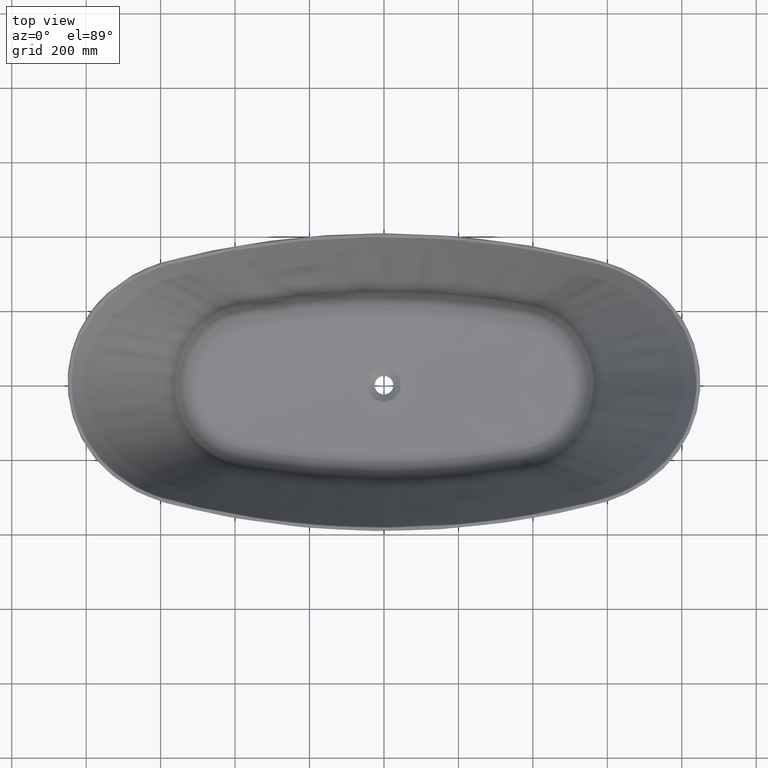
[diagram: clean part render]
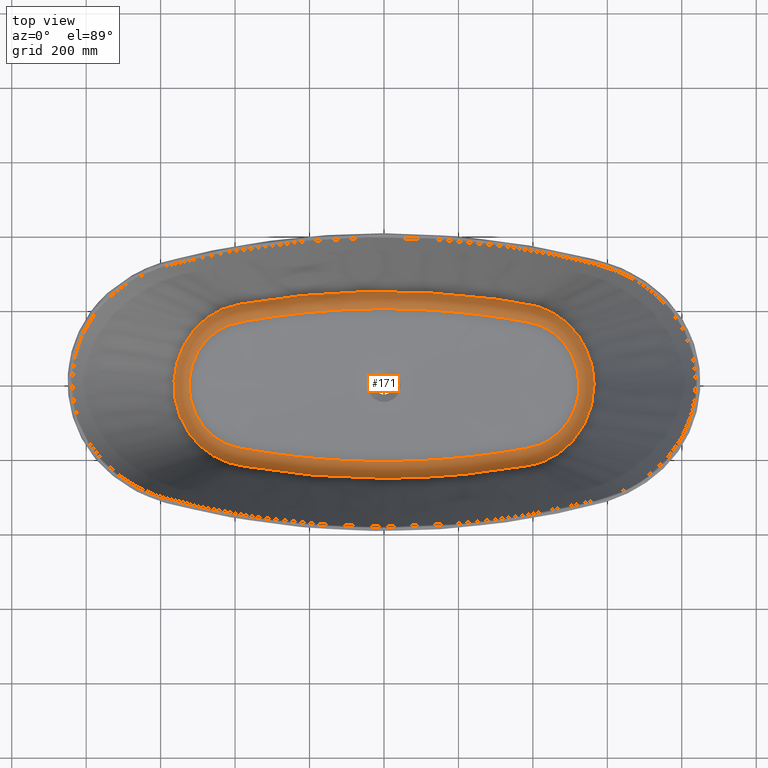
[diagram: same view with one face highlighted and labeled with its STEP entity id]
A machine part, top view. The second image highlights one B-rep face of the part: STEP entity #171.
In plain terms, the highlighted face is a freeform B-spline surface patch.
Its self-contained STEP definition (entity closure, byte-faithful):
#117=(
BOUNDED_SURFACE()
B_SPLINE_SURFACE(3,2,((#9885,#9886,#9887),(#9888,#9889,#9890),(#9891,#9892,
#9893),(#9894,#9895,#9896),(#9897,#9898,#9899),(#9900,#9901,#9902),(#9903,
#9904,#9905),(#9906,#9907,#9908),(#9909,#9910,#9911),(#9912,#9913,#9914),
(#9915,#9916,#9917),(#9918,#9919,#9920),(#9921,#9922,#9923),(#9924,#9925,
#9926),(#9927,#9928,#9929),(#9930,#9931,#9932),(#9933,#9934,#9935),(#9936,
#9937,#9938),(#9939,#9940,#9941),(#9942,#9943,#9944),(#9945,#9946,#9947),
(#9948,#9949,#9950),(#9951,#9952,#9953),(#9954,#9955,#9956),(#9957,#9958,
#9959),(#9960,#9961,#9962),(#9963,#9964,#9965),(#9966,#9967,#9968),(#9969,
#9970,#9971),(#9972,#9973,#9974),(#9975,#9976,#9977),(#9978,#9979,#9980),
(#9981,#9982,#9983),(#9984,#9985,#9986),(#9987,#9988,#9989),(#9990,#9991,
#9992),(#9993,#9994,#9995),(#9996,#9997,#9998),(#9999,#10000,#10001),(#10002,
#10003,#10004),(#10005,#10006,#10007),(#10008,#10009,#10010),(#10011,#10012,
#10013),(#10014,#10015,#10016),(#10017,#10018,#10019),(#10020,#10021,#10022),
(#10023,#10024,#10025),(#10026,#10027,#10028),(#10029,#10030,#10031),(#10032,
#10033,#10034),(#10035,#10036,#10037),(#10038,#10039,#10040),(#10041,#10042,
#10043),(#10044,#10045,#10046),(#10047,#10048,#10049),(#10050,#10051,#10052),
(#10053,#10054,#10055),(#10056,#10057,#10058),(#10059,#10060,#10061),(#10062,
#10063,#10064),(#10065,#10066,#10067),(#10068,#10069,#10070),(#10071,#10072,
#10073),(#10074,#10075,#10076),(#10077,#10078,#10079),(#10080,#10081,#10082),
(#10083,#10084,#10085),(#10086,#10087,#10088),(#10089,#10090,#10091),(#10092,
#10093,#10094),(#10095,#10096,#10097),(#10098,#10099,#10100),(#10101,#10102,
#10103),(#10104,#10105,#10106),(#10107,#10108,#10109),(#10110,#10111,#10112),
(#10113,#10114,#10115),(#10116,#10117,#10118),(#10119,#10120,#10121),(#10122,
#10123,#10124),(#10125,#10126,#10127),(#10128,#10129,#10130),(#10131,#10132,
#10133),(#10134,#10135,#10136),(#10137,#10138,#10139),(#10140,#10141,#10142),
(#10143,#10144,#10145),(#10146,#10147,#10148),(#10149,#10150,#10151),(#10152,
#10153,#10154),(#10155,#10156,#10157),(#10158,#10159,#10160),(#10161,#10162,
#10163),(#10164,#10165,#10166),(#10167,#10168,#10169),(#10170,#10171,#10172),
(#10173,#10174,#10175),(#10176,#10177,#10178),(#10179,#10180,#10181),(#10182,
#10183,#10184),(#10185,#10186,#10187),(#10188,#10189,#10190),(#10191,#10192,
#10193),(#10194,#10195,#10196),(#10197,#10198,#10199),(#10200,#10201,#10202),
(#10203,#10204,#10205),(#10206,#10207,#10208),(#10209,#10210,#10211),(#10212,
#10213,#10214),(#10215,#10216,#10217),(#10218,#10219,#10220),(#10221,#10222,
#10223),(#10224,#10225,#10226),(#10227,#10228,#10229),(#10230,#10231,#10232),
(#10233,#10234,#10235),(#10236,#10237,#10238),(#10239,#10240,#10241),(#10242,
#10243,#10244),(#10245,#10246,#10247),(#10248,#10249,#10250),(#10251,#10252,
#10253),(#10254,#10255,#10256),(#10257,#10258,#10259),(#10260,#10261,#10262),
(#10263,#10264,#10265),(#10266,#10267,#10268),(#10269,#10270,#10271),(#10272,
#10273,#10274),(#10275,#10276,#10277),(#10278,#10279,#10280),(#10281,#10282,
#10283),(#10284,#10285,#10286),(#10287,#10288,#10289),(#10290,#10291,#10292),
(#10293,#10294,#10295),(#10296,#10297,#10298),(#10299,#10300,#10301),(#10302,
#10303,#10304),(#10305,#10306,#10307),(#10308,#10309,#10310),(#10311,#10312,
#10313),(#10314,#10315,#10316),(#10317,#10318,#10319),(#10320,#10321,#10322),
(#10323,#10324,#10325),(#10326,#10327,#10328),(#10329,#10330,#10331),(#10332,
#10333,#10334),(#10335,#10336,#10337),(#10338,#10339,#10340),(#10341,#10342,
#10343),(#10344,#10345,#10346),(#10347,#10348,#10349),(#10350,#10351,#10352),
(#10353,#10354,#10355),(#10356,#10357,#10358),(#10359,#10360,#10361),(#10362,
#10363,#10364),(#10365,#10366,#10367),(#10368,#10369,#10370),(#10371,#10372,
#10373),(#10374,#10375,#10376),(#10377,#10378,#10379),(#10380,#10381,#10382),
(#10383,#10384,#10385),(#10386,#10387,#10388),(#10389,#10390,#10391),(#10392,
#10393,#10394),(#10395,#10396,#10397),(#10398,#10399,#10400),(#10401,#10402,
#10403),(#10404,#10405,#10406),(#10407,#10408,#10409),(#10410,#10411,#10412),
(#10413,#10414,#10415),(#10416,#10417,#10418),(#10419,#10420,#10421),(#10422,
#10423,#10424),(#10425,#10426,#10427),(#10428,#10429,#10430),(#10431,#10432,
#10433),(#10434,#10435,#10436),(#10437,#10438,#10439),(#10440,#10441,#10442),
(#10443,#10444,#10445),(#10446,#10447,#10448),(#10449,#10450,#10451),(#10452,
#10453,#10454),(#10455,#10456,#10457),(#10458,#10459,#10460),(#10461,#10462,
#10463),(#10464,#10465,#10466),(#10467,#10468,#10469),(#10470,#10471,#10472),
(#10473,#10474,#10475),(#10476,#10477,#10478),(#10479,#10480,#10481),(#10482,
#10483,#10484),(#10485,#10486,#10487),(#10488,#10489,#10490),(#10491,#10492,
#10493),(#10494,#10495,#10496),(#10497,#10498,#10499),(#10500,#10501,#10502),
(#10503,#10504,#10505),(#10506,#10507,#10508),(#10509,#10510,#10511),(#10512,
#10513,#10514),(#10515,#10516,#10517),(#10518,#10519,#10520),(#10521,#10522,
#10523),(#10524,#10525,#10526),(#10527,#10528,#10529),(#10530,#10531,#10532),
(#10533,#10534,#10535),(#10536,#10537,#10538)),.UNSPECIFIED.,.T.,.F.,.F.)
B_SPLINE_SURFACE_WITH_KNOTS((1,3,2,2,2,2,2,2,2,2,2,2,2,2,2,2,2,2,2,2,2,
2,2,2,2,2,2,2,2,2,2,2,2,2,2,2,2,2,2,2,2,2,2,2,2,2,2,2,2,2,2,2,2,2,2,2,2,
2,2,2,2,2,2,2,2,2,2,2,2,2,2,2,2,2,2,2,2,2,2,2,2,2,2,2,2,2,2,2,2,2,2,2,2,
2,2,2,2,2,2,2,2,2,2,2,2,2,2,2,2,3,1),(3,3),(-0.001953125,0.,0.00195312500000003,
0.00390624999999988,0.00781249999999994,0.0156250000000001,0.0312499999999999,
0.0625000000000001,0.0703125,0.072265625,0.0732421875,0.0737304687499999,
0.0742187499999999,0.0751953124999998,0.0761718749999999,0.0781249999999999,
0.09375,0.0976562499999999,0.1015625,0.109375,0.1171875,0.119140625,0.12109375,
0.125,0.140625,0.14453125,0.1484375,0.15625,0.1640625,0.171875,0.1875,0.19140625,
0.1953125,0.203125,0.2109375,0.21484375,0.21875,0.2265625,0.234375,0.23828125,
0.2421875,0.25,0.2578125,0.2587890625,0.25927734375,0.259765625,0.26025390625,
0.2607421875,0.26171875,0.265625,0.28125,0.3125,0.34375,0.375,0.40625,0.4375,
0.5,0.5625,0.5703125,0.5712890625,0.57177734375,0.572265625,0.5732421875,
0.57421875,0.578125,0.59375,0.6015625,0.60546875,0.609375,0.61328125,0.6171875,
0.62109375,0.625,0.640625,0.64453125,0.6484375,0.65625,0.6640625,0.671875,
0.6875,0.69140625,0.6953125,0.703125,0.7109375,0.71484375,0.71875,0.7265625,
0.734375,0.73828125,0.7421875,0.75,0.7578125,0.7587890625,0.759765625,0.76025390625,
0.7607421875,0.76171875,0.765625,0.78125,0.8125,0.84375,0.875,0.90625,0.9375,
0.96875,0.984375,0.9921875,0.99609375,0.998046875,1.,1.001953125),(0.,1.),
 .UNSPECIFIED.)
GEOMETRIC_REPRESENTATION_ITEM()
RATIONAL_B_SPLINE_SURFACE(((1.,0.817398733495515,1.),(1.,0.817371969569046,
1.),(1.,0.817344645181436,1.),(1.,0.817290546491222,1.),(1.,0.817263494513044,
1.),(1.,0.817182336013765,1.),(1.,0.817128227526244,1.),(1.,0.816965913152912,
1.),(1.,0.816857725614279,1.),(1.,0.816533077793077,1.),(1.,0.816316524793181,
1.),(1.,0.815664734046591,1.),(1.,0.81522518760301,1.),(1.,0.814661212045838,
1.),(1.,0.814547157651335,1.),(1.,0.814405204636513,1.),(1.,0.814376000437725,
1.),(1.,0.814326860277176,1.),(1.,0.814282646693044,1.),(1.,0.814322913780932,
1.),(1.,0.814345566503206,1.),(1.,0.814593435916466,1.),(1.,0.814911940240306,
1.),(1.,0.815715648992726,1.),(1.,0.816152619801448,1.),(1.,0.817125142268886,
1.),(1.,0.817610493369777,1.),(1.,0.819059304237549,1.),(1.,0.820017609707391,
1.),(1.,0.828579787598901,1.),(1.,0.83571039666178,1.),(1.,0.844043655144324,
1.),(1.,0.84568289287352,1.),(1.,0.848868393382432,1.),(1.,0.850415967991751,
1.),(1.,0.854925800143314,1.),(1.,0.857761886712705,1.),(1.,0.863150946631362,
1.),(1.,0.865726995370745,1.),(1.,0.868649211178418,1.),(1.,0.869227263225676,
1.),(1.,0.870280227818981,1.),(1.,0.870763164648742,1.),(1.,0.872191913079569,
1.),(1.,0.873089289936699,1.),(1.,0.877357925947023,1.),(1.,0.880016510117577,
1.),(1.,0.882582740081049,1.),(1.,0.883058025987736,1.),(1.,0.883923830767621,
1.),(1.,0.884315384925897,1.),(1.,0.885369990463913,1.),(1.,0.885916475757625,
1.),(1.,0.886714724311544,1.),(1.,0.886967650137881,1.),(1.,0.887179249092483,
1.),(1.,0.887136465009339,1.),(1.,0.886560884734787,1.),(1.,0.885602226470019,
1.),(1.,0.883615716809674,1.),(1.,0.883178659745547,1.),(1.,0.882220242452176,
1.),(1.,0.881696958293206,1.),(1.,0.880011075892416,1.),(1.,0.878730339421017,
1.),(1.,0.875822394522311,1.),(1.,0.874194104856835,1.),(1.,0.8714610596942,
1.),(1.,0.870535194580752,1.),(1.,0.868362836904897,1.),(1.,0.867151608413658,
1.),(1.,0.863478441221411,1.),(1.,0.860800251263897,1.),(1.,0.855254559716004,
1.),(1.,0.852330596941476,1.),(1.,0.847683120262127,1.),(1.,0.846089393631228,
1.),(1.,0.842820853913907,1.),(1.,0.84113815310409,1.),(1.,0.836019622481626,
1.),(1.,0.832503238951813,1.),(1.,0.8252550934545,1.),(1.,0.82153270881921,
1.),(1.,0.817218497774602,1.),(1.,0.81673471245687,1.),(1.,0.816017609814819,
1.),(1.,0.815780143344113,1.),(1.,0.815308296021831,1.),(1.,0.815012253834722,
1.),(1.,0.814490388125724,1.),(1.,0.81440572922053,1.),(1.,0.814312761049121,
1.),(1.,0.814303245031518,1.),(1.,0.814315507676711,1.),(1.,0.814339238491825,
1.),(1.,0.814421983452619,1.),(1.,0.814470606183102,1.),(1.,0.814752095453398,
1.),(1.,0.814974863983151,1.),(1.,0.815635548918436,1.),(1.,0.816064501558544,
1.),(1.,0.816922245671801,1.),(1.,0.817351976444522,1.),(1.,0.818203107389652,
1.),(1.,0.818627023025028,1.),(1.,0.819344843116146,1.),(1.,0.819631131349136,
1.),(1.,0.819850476489292,1.),(1.,0.819774070760254,1.),(1.,0.819086282317314,
1.),(1.,0.818145692253372,1.),(1.,0.816436922575037,1.),(1.,0.815589672606869,
1.),(1.,0.814581631844652,1.),(1.,0.814490942680445,1.),(1.,0.81433540071704,
1.),(1.,0.814321927781084,1.),(1.,0.814300531049382,1.),(1.,0.814315529365743,
1.),(1.,0.814422667669249,1.),(1.,0.814533271731217,1.),(1.,0.815415949906015,
1.),(1.,0.815844577678715,1.),(1.,0.816801820107538,1.),(1.,0.817284992165587,
1.),(1.,0.81967903707859,1.),(1.,0.821566276111619,1.),(1.,0.830846737451951,
1.),(1.,0.83781138848075,1.),(1.,0.847576861013184,1.),(1.,0.850660125513995,
1.),(1.,0.855032146164616,1.),(1.,0.856450952526772,1.),(1.,0.859208871320934,
1.),(1.,0.860524345700963,1.),(1.,0.863202911304581,1.),(1.,0.864468944855785,
1.),(1.,0.86690621996423,1.),(1.,0.868099045214071,1.),(1.,0.870301831561667,
1.),(1.,0.871225928427622,1.),(1.,0.873043339384474,1.),(1.,0.873905167801431,
1.),(1.,0.877981938133363,1.),(1.,0.880524054365949,1.),(1.,0.88296063539959,
1.),(1.,0.883409478836194,1.),(1.,0.884224613507468,1.),(1.,0.884591586120775,
1.),(1.,0.885577640903332,1.),(1.,0.886083459799985,1.),(1.,0.886807544176241,
1.),(1.,0.887026834499043,1.),(1.,0.887175985818938,1.),(1.,0.887104442888283,
1.),(1.,0.886453691937185,1.),(1.,0.885457796881661,1.),(1.,0.883434325505276,
1.),(1.,0.882990730776702,1.),(1.,0.882019630386968,1.),(1.,0.881491175309524,
1.),(1.,0.879794066554025,1.),(1.,0.878507682055118,1.),(1.,0.87559488071642,
1.),(1.,0.873966111923691,1.),(1.,0.87123766358667,1.),(1.,0.870313045805296,
1.),(1.,0.868112780384967,1.),(1.,0.866919615383758,1.),(1.,0.863265150761711,
1.),(1.,0.860608552844602,1.),(1.,0.855107653578604,1.),(1.,0.852209142312593,
1.),(1.,0.847604223099193,1.),(1.,0.846025807733693,1.),(1.,0.842789340160844,
1.),(1.,0.84112371433939,1.),(1.,0.836058099676228,1.),(1.,0.832579475635604,
1.),(1.,0.825410011549121,1.),(1.,0.821729419605106,1.),(1.,0.817464948112776,
1.),(1.,0.816987816710332,1.),(1.,0.816037119882931,1.),(1.,0.815616306190453,
1.),(1.,0.814799911010808,1.),(1.,0.814530543968993,1.),(1.,0.814338960376448,
1.),(1.,0.814318808291943,1.),(1.,0.814287657381879,1.),(1.,0.814327321290505,
1.),(1.,0.814415743244993,1.),(1.,0.81446062183029,1.),(1.,0.814739214649636,
1.),(1.,0.814959832218344,1.),(1.,0.815614159902053,1.),(1.,0.816038922172161,
1.),(1.,0.816887876045539,1.),(1.,0.817312942806327,1.),(1.,0.818156251607087,
1.),(1.,0.818576988367092,1.),(1.,0.819299459094148,1.),(1.,0.819594676397379,
1.),(1.,0.819848194565285,1.),(1.,0.819795981628477,1.),(1.,0.819379227715891,
1.),(1.,0.819028989124959,1.),(1.,0.818444354753974,1.),(1.,0.818239173813536,
1.),(1.,0.81792654749356,1.),(1.,0.817821446395754,1.),(1.,0.817663249783139,
1.),(1.,0.817610420705169,1.),(1.,0.817531091827981,1.),(1.,0.817504634445303,
1.),(1.,0.817451698408655,1.),(1.,0.817425497421984,1.),(1.,0.817398733495515,
1.)))
REPRESENTATION_ITEM('')
SURFACE()
);
#171=ADVANCED_FACE('',(#206,#207),#117,.T.);
#206=FACE_BOUND('',#254,.T.);
#207=FACE_BOUND('',#255,.T.);
#254=EDGE_LOOP('',(#400,#401,#402));
#255=EDGE_LOOP('',(#403,#404,#405));
#400=ORIENTED_EDGE('',*,*,#558,.F.);
#401=ORIENTED_EDGE('',*,*,#557,.F.);
#402=ORIENTED_EDGE('',*,*,#556,.F.);
#403=ORIENTED_EDGE('',*,*,#563,.F.);
#404=ORIENTED_EDGE('',*,*,#562,.F.);
#405=ORIENTED_EDGE('',*,*,#561,.F.);
#478=VERTEX_POINT('',#8872);
#479=VERTEX_POINT('',#8873);
#480=VERTEX_POINT('',#8896);
#483=VERTEX_POINT('',#9214);
#484=VERTEX_POINT('',#9215);
#485=VERTEX_POINT('',#9242);
#556=EDGE_CURVE('',#478,#479,#629,.T.);
#557=EDGE_CURVE('',#479,#480,#630,.T.);
#558=EDGE_CURVE('',#480,#478,#631,.T.);
#561=EDGE_CURVE('',#483,#484,#634,.T.);
#562=EDGE_CURVE('',#484,#485,#635,.T.);
#563=EDGE_CURVE('',#485,#483,#636,.T.);
#629=B_SPLINE_CURVE_WITH_KNOTS('',3,(#8866,#8867,#8868,#8869,#8870,#8871),
 .UNSPECIFIED.,.F.,.F.,(4,2,4),(0.,0.5,1.),.UNSPECIFIED.);
#630=B_SPLINE_CURVE_WITH_KNOTS('',3,(#8874,#8875,#8876,#8877,#8878,#8879,
#8880,#8881,#8882,#8883,#8884,#8885,#8886,#8887,#8888,#8889,#8890,#8891,
#8892,#8893,#8894,#8895),.UNSPECIFIED.,.F.,.F.,(4,2,2,2,2,2,2,2,2,2,4),
(0.,0.0624999999999999,0.125,0.25,0.3125,0.375,0.5,0.625000000000001,0.75,
0.875,1.),.UNSPECIFIED.);
#631=B_SPLINE_CURVE_WITH_KNOTS('',3,(#8897,#8898,#8899,#8900,#8901,#8902,
#8903,#8904,#8905,#8906,#8907,#8908,#8909,#8910,#8911,#8912,#8913,#8914,
#8915,#8916,#8917,#8918,#8919,#8920,#8921,#8922,#8923,#8924,#8925,#8926,
#8927,#8928,#8929,#8930,#8931,#8932,#8933,#8934,#8935,#8936,#8937,#8938,
#8939,#8940,#8941,#8942,#8943,#8944,#8945,#8946,#8947,#8948,#8949,#8950,
#8951,#8952,#8953,#8954,#8955,#8956,#8957,#8958,#8959,#8960,#8961,#8962,
#8963,#8964,#8965,#8966,#8967,#8968,#8969,#8970,#8971,#8972,#8973,#8974,
#8975,#8976,#8977,#8978,#8979,#8980,#8981,#8982,#8983,#8984),
 .UNSPECIFIED.,.F.,.F.,(4,2,2,2,2,2,2,2,2,2,2,2,2,2,2,2,2,2,2,2,2,2,2,2,
2,2,2,2,2,2,2,2,2,2,2,2,2,2,2,2,2,2,2,4),(0.,0.015625,0.03125,0.0390625000000001,
0.0468750000000002,0.0625000000000003,0.0703125000000004,0.0781250000000006,
0.0937500000000006,0.101562500000001,0.109375000000001,0.117187500000001,
0.125000000000001,0.25,0.3125,0.375,0.499999999999999,0.531249999999999,
0.539062499999999,0.546874999999999,0.562499999999999,0.578124999999999,
0.593749999999999,0.601562499999999,0.609374999999999,0.624999999999999,
0.640624999999999,0.656249999999999,0.671874999999999,0.687499999999999,
0.703124999999999,0.71875,0.7265625,0.734375,0.75,0.7578125,0.765625,0.78125,
0.7890625,0.796875,0.8125,0.875,0.9375,1.),.UNSPECIFIED.);
#634=B_SPLINE_CURVE_WITH_KNOTS('',3,(#9112,#9113,#9114,#9115,#9116,#9117,
#9118,#9119,#9120,#9121,#9122,#9123,#9124,#9125,#9126,#9127,#9128,#9129,
#9130,#9131,#9132,#9133,#9134,#9135,#9136,#9137,#9138,#9139,#9140,#9141,
#9142,#9143,#9144,#9145,#9146,#9147,#9148,#9149,#9150,#9151,#9152,#9153,
#9154,#9155,#9156,#9157,#9158,#9159,#9160,#9161,#9162,#9163,#9164,#9165,
#9166,#9167,#9168,#9169,#9170,#9171,#9172,#9173,#9174,#9175,#9176,#9177,
#9178,#9179,#9180,#9181,#9182,#9183,#9184,#9185,#9186,#9187,#9188,#9189,
#9190,#9191,#9192,#9193,#9194,#9195,#9196,#9197,#9198,#9199,#9200,#9201,
#9202,#9203,#9204,#9205,#9206,#9207,#9208,#9209,#9210,#9211,#9212,#9213),
 .UNSPECIFIED.,.F.,.F.,(4,2,2,2,2,2,2,2,2,2,2,2,2,2,2,2,2,2,2,2,2,2,2,2,
2,2,2,2,2,2,2,2,2,2,2,2,2,2,2,2,2,2,2,2,2,2,2,2,2,2,4),(0.,0.0624999999999997,
0.124999999999999,0.187499999999999,0.191406249999999,0.193359374999999,
0.195312499999999,0.203124999999999,0.218749999999999,0.226562499999999,
0.234374999999999,0.249999999999999,0.265624999999999,0.281249999999999,
0.296874999999999,0.3125,0.328125,0.34375,0.359375,0.375,0.40625,0.4140625,
0.421875,0.4375,0.4453125,0.453125,0.46875,0.47265625,0.474609375,0.4765625,
0.484375,0.5,0.625,0.6875,0.75,0.8125,0.84375,0.8515625,0.85546875,0.857421875,
0.859375,0.875,0.890625,0.90625,0.921875,0.9296875,0.9375,0.953125,0.96875,
0.984375,1.),.UNSPECIFIED.);
#635=B_SPLINE_CURVE_WITH_KNOTS('',3,(#9216,#9217,#9218,#9219,#9220,#9221,
#9222,#9223,#9224,#9225,#9226,#9227,#9228,#9229,#9230,#9231,#9232,#9233,
#9234,#9235,#9236,#9237,#9238,#9239,#9240,#9241),.UNSPECIFIED.,.F.,.F.,
(4,2,2,2,2,2,2,2,2,2,2,2,4),(0.,0.125,0.249999999999999,0.374999999999999,
0.499999999999998,0.624999999999998,0.687499999999999,0.749999999999999,
0.875,0.937500000000001,0.953125000000001,0.968750000000001,1.),
 .UNSPECIFIED.);
#636=B_SPLINE_CURVE_WITH_KNOTS('',3,(#9243,#9244,#9245,#9246,#9247,#9248),
 .UNSPECIFIED.,.F.,.F.,(4,2,4),(0.,0.5,1.),.UNSPECIFIED.);
#8866=CARTESIAN_POINT('',(-4.7977466369577E-8,-205.08816299998,-451.245847465849));
#8867=CARTESIAN_POINT('',(63.0999882304484,-205.088162845148,-451.245847470885));
#8868=CARTESIAN_POINT('',(126.136958630723,-202.16483529497,-450.411732861416));
#8869=CARTESIAN_POINT('',(251.456708484122,-190.882326517121,-448.075054722603));
#8870=CARTESIAN_POINT('',(313.828861967649,-182.513770634306,-446.60786645639));
#8871=CARTESIAN_POINT('',(375.913413230115,-171.378165315456,-445.067431641847));
#8872=CARTESIAN_POINT('',(-4.79774194046147E-8,-205.08816299998,-451.245847465849));
#8873=CARTESIAN_POINT('',(375.913413230115,-171.378165315456,-445.067431641847));
#8874=CARTESIAN_POINT('',(375.913413230115,-171.378165315456,-445.067431641847));
#8875=CARTESIAN_POINT('',(381.050359099705,-170.456792758437,-444.939974326025));
#8876=CARTESIAN_POINT('',(386.198574280183,-169.559948570353,-444.810982799654));
#8877=CARTESIAN_POINT('',(396.42406268387,-167.536890401033,-444.555853415342));
#8878=CARTESIAN_POINT('',(401.44693218273,-166.283880309736,-444.432667097492));
#8879=CARTESIAN_POINT('',(416.252900131819,-161.819226700218,-444.075027016838));
#8880=CARTESIAN_POINT('',(425.776567940852,-157.910583965434,-443.852342958327));
#8881=CARTESIAN_POINT('',(439.533714988638,-150.628341588647,-443.538746649025));
#8882=CARTESIAN_POINT('',(444.03768616115,-147.954856983975,-443.437504883956));
#8883=CARTESIAN_POINT('',(452.672899464554,-142.244284741147,-443.245739294952));
#8884=CARTESIAN_POINT('',(456.829765186519,-139.19553327508,-443.154621108677));
#8885=CARTESIAN_POINT('',(468.82852388158,-129.481401182616,-442.894487955114));
#8886=CARTESIAN_POINT('',(476.232275656455,-122.222731411775,-442.73793757401));
#8887=CARTESIAN_POINT('',(489.586934147284,-106.234724581387,-442.461287193677));
#8888=CARTESIAN_POINT('',(495.414301564106,-97.7538240186443,-442.343078045961));
#8889=CARTESIAN_POINT('',(505.577698462777,-79.9377575343389,-442.138375821954));
#8890=CARTESIAN_POINT('',(509.894832502498,-70.5917652235075,-442.052520975667));
#8891=CARTESIAN_POINT('',(516.940254883118,-50.989677356224,-441.913191659657));
#8892=CARTESIAN_POINT('',(519.575925767411,-40.9750096764743,-441.861544447617));
#8893=CARTESIAN_POINT('',(523.100338051932,-20.710110490184,-441.792603418654));
#8894=CARTESIAN_POINT('',(523.999431525377,-10.4312896884016,-441.77511092463));
#8895=CARTESIAN_POINT('',(523.999434132418,3.05179287933099E-6,-441.775110845404));
#8896=CARTESIAN_POINT('',(523.999434132418,3.05179287933099E-6,-441.775110845404));
#8897=CARTESIAN_POINT('',(523.999434132418,3.05179329727419E-6,-441.775110845404));
#8898=CARTESIAN_POINT('',(523.999436614251,9.93030860184674,-441.775110769984));
#8899=CARTESIAN_POINT('',(523.175141868187,19.8096192862055,-441.791150327356));
#8900=CARTESIAN_POINT('',(519.964261412691,39.1506319254056,-441.853939313989));
#8901=CARTESIAN_POINT('',(517.578913338735,48.6595606664409,-441.900659103053));
#8902=CARTESIAN_POINT('',(512.801112603035,62.6743865181293,-441.995017453387));
#8903=CARTESIAN_POINT('',(510.999482206583,67.3195803102123,-442.030701196699));
#8904=CARTESIAN_POINT('',(507.051175330692,76.3648083079646,-442.109264078045));
#8905=CARTESIAN_POINT('',(504.900319936764,80.782209729935,-442.152221935483));
#8906=CARTESIAN_POINT('',(497.925952832546,93.7237173568653,-442.292273053124));
#8907=CARTESIAN_POINT('',(492.585212029258,101.939849546899,-442.400411643028));
#8908=CARTESIAN_POINT('',(483.504025709669,113.626872400054,-442.587128879662));
#8909=CARTESIAN_POINT('',(480.269404935891,117.424369696545,-442.654212711106));
#8910=CARTESIAN_POINT('',(473.522596468471,124.622628211334,-442.795835659908));
#8911=CARTESIAN_POINT('',(470.002604585949,128.040218190867,-442.870508115939));
#8912=CARTESIAN_POINT('',(459.024081650311,137.774632344035,-443.106001423393));
#8913=CARTESIAN_POINT('',(451.150526967244,143.577465576734,-443.278167419243));
#8914=CARTESIAN_POINT('',(438.479799558239,151.216075255825,-443.56265807106));
#8915=CARTESIAN_POINT('',(434.092465311867,153.591014980279,-443.662349494369));
#8916=CARTESIAN_POINT('',(425.217102631552,157.87520939604,-443.866791415246));
#8917=CARTESIAN_POINT('',(420.710295149607,159.798264151615,-443.971949893815));
#8918=CARTESIAN_POINT('',(411.561487646569,163.215946077392,-444.188512805794));
#8919=CARTESIAN_POINT('',(406.919547138759,164.710761989142,-444.299912615933));
#8920=CARTESIAN_POINT('',(397.500797443448,167.272954558141,-444.529441342763));
#8921=CARTESIAN_POINT('',(392.711929345289,168.302099125974,-444.648352736342));
#8922=CARTESIAN_POINT('',(310.579272444834,183.509826634162,-446.703441218089));
#8923=CARTESIAN_POINT('',(232.43295286996,193.590936543936,-448.56680668941));
#8924=CARTESIAN_POINT('',(114.829389187048,202.259330937433,-450.498323169829));
#8925=CARTESIAN_POINT('',(75.573551479959,204.074208556808,-450.977470777004));
#8926=CARTESIAN_POINT('',(-3.05495756165018,205.461597225061,-451.344043740981));
#8927=CARTESIAN_POINT('',(-42.4526667825107,205.019475092128,-451.216766175007));
#8928=CARTESIAN_POINT('',(-160.309217488079,200.360666128286,-450.040444800703));
#8929=CARTESIAN_POINT('',(-238.414471483662,192.917275347289,-448.344440223495));
#8930=CARTESIAN_POINT('',(-335.495435160065,178.320185852932,-446.059032221212));
#8931=CARTESIAN_POINT('',(-354.883738028049,175.13356777917,-445.58860883452));
#8932=CARTESIAN_POINT('',(-379.083981761274,170.812757198164,-444.988884693126));
#8933=CARTESIAN_POINT('',(-383.92166183545,169.932633695961,-444.868351857846));
#8934=CARTESIAN_POINT('',(-393.589834404213,168.136033229405,-444.626322956534));
#8935=CARTESIAN_POINT('',(-398.364638288465,167.063184518056,-444.508203556275));
#8936=CARTESIAN_POINT('',(-412.424833364475,163.15548058998,-444.166178208583));
#8937=CARTESIAN_POINT('',(-421.488412348577,159.717778889626,-443.952454198064));
#8938=CARTESIAN_POINT('',(-438.996107527219,151.178317167584,-443.549637806988));
#8939=CARTESIAN_POINT('',(-447.456978655787,146.039263126462,-443.360295766973));
#8940=CARTESIAN_POINT('',(-463.072269358167,134.490048341106,-443.01810928703));
#8941=CARTESIAN_POINT('',(-470.325171843637,128.04777484836,-442.86292158021));
#8942=CARTESIAN_POINT('',(-480.339107020637,117.342838806776,-442.652766575121));
#8943=CARTESIAN_POINT('',(-483.538375975119,113.582729878318,-442.586422526702));
#8944=CARTESIAN_POINT('',(-489.5255543139,105.877407603203,-442.463321001368));
#8945=CARTESIAN_POINT('',(-492.341458921211,101.922962143525,-442.405841457981));
#8946=CARTESIAN_POINT('',(-500.273417268615,89.7641867573952,-442.244797058156));
#8947=CARTESIAN_POINT('',(-504.876315857685,81.2659074035862,-442.152565317465));
#8948=CARTESIAN_POINT('',(-512.707965567538,63.4822196054247,-441.99668123361));
#8949=CARTESIAN_POINT('',(-515.941692340132,54.1279402359427,-441.932946816615));
#8950=CARTESIAN_POINT('',(-520.774496963788,35.2923518219101,-441.838025904872));
#8951=CARTESIAN_POINT('',(-522.41488865175,25.7429570132882,-441.806015531044));
#8952=CARTESIAN_POINT('',(-524.148951882133,6.38186720079661,-441.77218377839));
#8953=CARTESIAN_POINT('',(-524.230561710281,-3.51856427777657,-441.770597712196));
#8954=CARTESIAN_POINT('',(-522.789854707476,-23.0193547868513,-441.798695123745));
#8955=CARTESIAN_POINT('',(-521.288020408283,-32.6078470634009,-441.827985491849));
#8956=CARTESIAN_POINT('',(-516.755822880648,-51.4681570182014,-441.916922517246));
#8957=CARTESIAN_POINT('',(-513.696562368821,-60.8054449117308,-441.977138033694));
#8958=CARTESIAN_POINT('',(-506.090513720539,-78.8331315681429,-442.128297301299));
#8959=CARTESIAN_POINT('',(-501.595355413802,-87.4348625738569,-442.218209624965));
#8960=CARTESIAN_POINT('',(-493.834366919348,-99.7311537311518,-442.375450732032));
#8961=CARTESIAN_POINT('',(-491.076622772235,-103.728247559641,-442.431620595547));
#8962=CARTESIAN_POINT('',(-485.212910902053,-111.515086376065,-442.551884506817));
#8963=CARTESIAN_POINT('',(-482.086185436119,-115.32293101869,-442.616439420934));
#8964=CARTESIAN_POINT('',(-472.235493533577,-126.212754277709,-442.822372262487));
#8965=CARTESIAN_POINT('',(-465.096013859785,-132.763820932977,-442.974554044321));
#8966=CARTESIAN_POINT('',(-453.575997891096,-141.586254446032,-443.225956260261));
#8967=CARTESIAN_POINT('',(-449.599317531279,-144.357794247288,-443.313662226715));
#8968=CARTESIAN_POINT('',(-441.365480287932,-149.55349294356,-443.497537323717));
#8969=CARTESIAN_POINT('',(-437.083288668283,-151.990038453606,-443.59427928542));
#8970=CARTESIAN_POINT('',(-424.003686657093,-158.653170046726,-443.893739988339));
#8971=CARTESIAN_POINT('',(-415.011915773348,-162.233263900326,-444.104719712534));
#8972=CARTESIAN_POINT('',(-401.130990755506,-166.357045463683,-444.440456439694));
#8973=CARTESIAN_POINT('',(-396.437926124004,-167.522186110206,-444.555605738571));
#8974=CARTESIAN_POINT('',(-386.918084602315,-169.428665443468,-444.792939915393));
#8975=CARTESIAN_POINT('',(-382.120042100779,-170.26110230388,-444.913293907884));
#8976=CARTESIAN_POINT('',(-367.754055259744,-172.847816106346,-445.270105852737));
#8977=CARTESIAN_POINT('',(-358.165480711695,-174.506844038303,-445.505811373385));
#8978=CARTESIAN_POINT('',(-310.182144839504,-182.473745431559,-446.670990830934));
#8979=CARTESIAN_POINT('',(-271.650081290225,-187.801308495198,-447.564086192988));
#8980=CARTESIAN_POINT('',(-194.294260873892,-196.373954649897,-449.174590413249));
#8981=CARTESIAN_POINT('',(-155.489303080736,-199.617117869097,-449.893156582736));
#8982=CARTESIAN_POINT('',(-77.8284775420984,-203.974950780329,-450.935393740981));
#8983=CARTESIAN_POINT('',(-38.9433335471027,-205.088163095537,-451.245847462741));
#8984=CARTESIAN_POINT('',(-4.79774194046147E-8,-205.08816299998,-451.245847465849));
#9112=CARTESIAN_POINT('',(6.84254921542939E-8,-251.040330419318,-417.072659563959));
#9113=CARTESIAN_POINT('',(-43.4397847833499,-251.040330531562,-417.072659546054));
#9114=CARTESIAN_POINT('',(-86.8156065242184,-249.774077511645,-416.693319584411));
#9115=CARTESIAN_POINT('',(-173.441101966403,-244.682715249294,-415.442708761446));
#9116=CARTESIAN_POINT('',(-216.72755690436,-240.849517815006,-414.588393978981));
#9117=CARTESIAN_POINT('',(-302.920280047632,-230.614877055226,-412.674764632824));
#9118=CARTESIAN_POINT('',(-345.860101221097,-224.214308762895,-411.610548876684));
#9119=CARTESIAN_POINT('',(-391.253217111784,-216.052616450573,-410.422808196692));
#9120=CARTESIAN_POINT('',(-393.927166951173,-215.57937554364,-410.317395154497));
#9121=CARTESIAN_POINT('',(-397.918079495362,-214.824597446449,-410.273541100041));
#9122=CARTESIAN_POINT('',(-399.229354593095,-214.531238654724,-410.375883538719));
#9123=CARTESIAN_POINT('',(-401.851012086843,-213.934168360846,-410.512186012148));
#9124=CARTESIAN_POINT('',(-403.157185246094,-213.622380401294,-410.58224624152));
#9125=CARTESIAN_POINT('',(-409.666462315567,-212.000642875385,-410.929586637829));
#9126=CARTESIAN_POINT('',(-414.803961172552,-210.500788377948,-411.206040143373));
#9127=CARTESIAN_POINT('',(-430.009792080488,-205.402586205752,-412.02918872519));
#9128=CARTESIAN_POINT('',(-439.87216090239,-201.207901963407,-412.572046390814));
#9129=CARTESIAN_POINT('',(-454.242373189049,-193.689251800312,-413.370509829104));
#9130=CARTESIAN_POINT('',(-458.981010081955,-190.963744306506,-413.635252241645));
#9131=CARTESIAN_POINT('',(-468.145189961243,-185.194623159346,-414.150306315807));
#9132=CARTESIAN_POINT('',(-472.586035129414,-182.144511009313,-414.402171941205));
#9133=CARTESIAN_POINT('',(-485.498615081921,-172.513345989335,-415.136524351582));
#9134=CARTESIAN_POINT('',(-493.566365287415,-165.458097977311,-415.59257963382));
#9135=CARTESIAN_POINT('',(-508.595967355034,-150.053738386507,-416.495273165362));
#9136=CARTESIAN_POINT('',(-515.592921075081,-141.618545463637,-416.91620115676));
#9137=CARTESIAN_POINT('',(-528.156513047273,-124.023766062297,-417.564755234063));
#9138=CARTESIAN_POINT('',(-533.764683751539,-114.841400920154,-417.842921168698));
#9139=CARTESIAN_POINT('',(-543.658675769423,-95.7213871677298,-418.323898718374));
#9140=CARTESIAN_POINT('',(-547.963303871117,-85.7299693333407,-418.526544878632));
#9141=CARTESIAN_POINT('',(-555.111256567381,-65.2061503168405,-418.857601198767));
#9142=CARTESIAN_POINT('',(-557.922322815441,-54.7920423940426,-418.984759768399));
#9143=CARTESIAN_POINT('',(-562.067128637337,-33.6691592782426,-419.170890307942));
#9144=CARTESIAN_POINT('',(-563.401022330344,-22.9604136174629,-419.229735650224));
#9145=CARTESIAN_POINT('',(-564.545778225307,-1.2391682628402,-419.280396425088));
#9146=CARTESIAN_POINT('',(-564.340731958417,9.69916172637519,-419.271390092315));
#9147=CARTESIAN_POINT('',(-562.421529696989,31.1874103225165,-419.186272180345));
#9148=CARTESIAN_POINT('',(-560.713948822385,41.8093871960979,-419.110536077032));
#9149=CARTESIAN_POINT('',(-555.801743734175,62.8088399500803,-418.888702116635));
#9150=CARTESIAN_POINT('',(-552.560785106955,73.2683347675917,-418.740884825457));
#9151=CARTESIAN_POINT('',(-540.768559900786,103.50364655667,-418.188144645475));
#9152=CARTESIAN_POINT('',(-530.233023035294,122.192243105414,-417.738716710331));
#9153=CARTESIAN_POINT('',(-513.693835213671,143.694836921852,-416.789448704071));
#9154=CARTESIAN_POINT('',(-510.196303296488,147.890673197064,-416.583492122774));
#9155=CARTESIAN_POINT('',(-502.94819249145,155.919986639984,-416.156508434005));
#9156=CARTESIAN_POINT('',(-499.183260788887,159.773696542391,-415.93035718406));
#9157=CARTESIAN_POINT('',(-487.467696327893,170.85642211786,-415.249355673911));
#9158=CARTESIAN_POINT('',(-479.106350523562,177.617149742293,-414.771919505644));
#9159=CARTESIAN_POINT('',(-465.715516112854,186.790703725901,-414.013172302874));
#9160=CARTESIAN_POINT('',(-461.088328926143,189.69681837476,-413.75339627107));
#9161=CARTESIAN_POINT('',(-451.687002003367,195.090223101278,-413.228286678454));
#9162=CARTESIAN_POINT('',(-446.905230735897,197.58493717944,-412.962478058556));
#9163=CARTESIAN_POINT('',(-432.321382579999,204.475299990962,-412.157387454074));
#9164=CARTESIAN_POINT('',(-422.282265818843,208.280648654551,-411.608717054562));
#9165=CARTESIAN_POINT('',(-409.331842713319,212.038097929218,-410.912022153265));
#9166=CARTESIAN_POINT('',(-406.721538515481,212.739286565283,-410.772261681222));
#9167=CARTESIAN_POINT('',(-402.775329873122,213.714546773143,-410.561842726655));
#9168=CARTESIAN_POINT('',(-401.454833763885,214.026916812715,-410.491258312939));
#9169=CARTESIAN_POINT('',(-398.802858356961,214.624917130851,-410.354154170396));
#9170=CARTESIAN_POINT('',(-397.471131790995,214.913149144828,-410.268047042138));
#9171=CARTESIAN_POINT('',(-390.775802362046,216.155930762974,-410.401070842541));
#9172=CARTESIAN_POINT('',(-385.412823825438,217.107231773373,-410.575814396969));
#9173=CARTESIAN_POINT('',(-369.319965333715,219.934401730978,-410.993890561409));
#9174=CARTESIAN_POINT('',(-358.583071675229,221.737586879844,-411.268631944125));
#9175=CARTESIAN_POINT('',(-261.876449049463,237.235756036222,-413.701486053298));
#9176=CARTESIAN_POINT('',(-175.387248471989,245.824616732534,-415.67692697947));
#9177=CARTESIAN_POINT('',(-44.8457411663447,251.016676699208,-417.049405193826));
#9178=CARTESIAN_POINT('',(-1.19840355520975,251.465857096227,-417.190607855349));
#9179=CARTESIAN_POINT('',(85.9009919755195,249.809578822213,-416.727776840763));
#9180=CARTESIAN_POINT('',(129.386574125463,247.704816906578,-416.146722600771));
#9181=CARTESIAN_POINT('',(216.231282779646,240.900572587613,-414.614812435986));
#9182=CARTESIAN_POINT('',(259.575086247032,236.199077736009,-413.670307248669));
#9183=CARTESIAN_POINT('',(324.268850605842,227.214594878076,-412.131462658691));
#9184=CARTESIAN_POINT('',(345.789129044717,223.897205080303,-411.596366013335));
#9185=CARTESIAN_POINT('',(372.634081783904,219.345887125368,-410.907471758665));
#9186=CARTESIAN_POINT('',(378.000356301212,218.415368034622,-410.768659115214));
#9187=CARTESIAN_POINT('',(386.045428907848,216.989152797791,-410.559081151158));
#9188=CARTESIAN_POINT('',(388.725431461074,216.508841098971,-410.489028900915));
#9189=CARTESIAN_POINT('',(392.742902424161,215.781011995027,-410.38365683674));
#9190=CARTESIAN_POINT('',(394.082035140103,215.538024707074,-410.345827739732));
#9191=CARTESIAN_POINT('',(396.758415388368,215.047443118201,-410.27762631587));
#9192=CARTESIAN_POINT('',(398.086822921399,214.781651555903,-410.312195633209));
#9193=CARTESIAN_POINT('',(409.942744699614,212.139812665966,-410.965447576631));
#9194=CARTESIAN_POINT('',(420.206135746693,208.989498177547,-411.495276291442));
#9195=CARTESIAN_POINT('',(440.171258162381,201.067672859643,-412.588540899223));
#9196=CARTESIAN_POINT('',(449.914290784191,196.282169284983,-413.128309166244));
#9197=CARTESIAN_POINT('',(468.657963204918,185.115599996509,-414.177503183671));
#9198=CARTESIAN_POINT('',(477.457309728342,178.861148933852,-414.67682002182));
#9199=CARTESIAN_POINT('',(493.969321308716,165.078097676278,-415.625049831811));
#9200=CARTESIAN_POINT('',(501.680806573993,157.548774736426,-416.083726306007));
#9201=CARTESIAN_POINT('',(512.406865463272,145.267119353275,-416.712085743635));
#9202=CARTESIAN_POINT('',(515.842726175436,140.991594480134,-416.921369709537));
#9203=CARTESIAN_POINT('',(522.341731426158,132.27537987849,-417.269136650108));
#9204=CARTESIAN_POINT('',(525.422730706569,127.820720884399,-417.422717301743));
#9205=CARTESIAN_POINT('',(534.157091970772,114.166487341844,-417.86351847002));
#9206=CARTESIAN_POINT('',(539.310664497338,104.68122288945,-418.114398817484));
#9207=CARTESIAN_POINT('',(548.276859848701,84.9448437964166,-418.54173261944));
#9208=CARTESIAN_POINT('',(552.098715561686,74.6302211994153,-418.718689978758));
#9209=CARTESIAN_POINT('',(558.164182574031,53.8138790222767,-418.996323511712));
#9210=CARTESIAN_POINT('',(560.443104444471,43.2553331874694,-419.098175755843));
#9211=CARTESIAN_POINT('',(563.507742991527,21.8404218085135,-419.234588553629));
#9212=CARTESIAN_POINT('',(564.291899577378,10.9388542218747,-419.269137860795));
#9213=CARTESIAN_POINT('',(564.291896834712,-7.21899311054461E-6,-419.269137945364));
#9214=CARTESIAN_POINT('',(6.84254314519584E-8,-251.040330419318,-417.072659563959));
#9215=CARTESIAN_POINT('',(564.291896834712,-7.21899311054461E-6,-419.269137945364));
#9216=CARTESIAN_POINT('',(564.291896834712,-7.21899311024439E-6,-419.269137945364));
#9217=CARTESIAN_POINT('',(564.291893578781,-12.9859779718231,-419.269138045759));
#9218=CARTESIAN_POINT('',(563.199599408435,-25.793577845378,-419.221182037645));
#9219=CARTESIAN_POINT('',(558.911987943466,-51.0653295069001,-419.029563475683));
#9220=CARTESIAN_POINT('',(555.699139021129,-63.5790285411558,-418.884918453462));
#9221=CARTESIAN_POINT('',(547.139020689725,-88.0341459262256,-418.488280779191));
#9222=CARTESIAN_POINT('',(541.888434576051,-99.7282406182793,-418.240129578177));
#9223=CARTESIAN_POINT('',(529.511432493993,-122.084937591223,-417.632428921239));
#9224=CARTESIAN_POINT('',(522.396924675087,-132.75465699115,-417.294229238512));
#9225=CARTESIAN_POINT('',(506.14791786631,-152.979157172613,-416.346444342784));
#9226=CARTESIAN_POINT('',(497.180457386436,-162.197699198979,-415.810877985878));
#9227=CARTESIAN_POINT('',(482.577002810318,-174.66318080985,-414.970302327138));
#9228=CARTESIAN_POINT('',(477.512586982532,-178.594354781038,-414.681903151497));
#9229=CARTESIAN_POINT('',(466.982798351538,-185.99965148413,-414.08478037705));
#9230=CARTESIAN_POINT('',(461.485912948091,-189.489113999819,-413.775502227279));
#9231=CARTESIAN_POINT('',(444.665551107319,-199.074660618169,-412.83632221684));
#9232=CARTESIAN_POINT('',(432.995436685148,-204.328037046454,-412.191623932095));
#9233=CARTESIAN_POINT('',(414.815667145066,-210.529310589923,-411.206384522967));
#9234=CARTESIAN_POINT('',(408.642791723238,-212.315212360454,-410.874199437998));
#9235=CARTESIAN_POINT('',(400.780803230777,-214.184613511008,-410.455720945434));
#9236=CARTESIAN_POINT('',(399.205832299191,-214.554143728439,-410.326730594366));
#9237=CARTESIAN_POINT('',(396.021978312171,-215.199611323837,-410.252744216766));
#9238=CARTESIAN_POINT('',(394.424274432665,-215.475230943204,-410.338314272487));
#9239=CARTESIAN_POINT('',(389.636048654622,-216.345020297893,-410.466783346197));
#9240=CARTESIAN_POINT('',(386.442726870969,-216.918908858619,-410.548725029057));
#9241=CARTESIAN_POINT('',(383.248029196379,-217.485077725216,-410.631940195746));
#9242=CARTESIAN_POINT('',(383.248029196379,-217.485077725216,-410.631940195746));
#9243=CARTESIAN_POINT('',(383.248029196379,-217.485077725216,-410.631940195746));
#9244=CARTESIAN_POINT('',(319.941035389711,-228.704433226759,-412.280954462139));
#9245=CARTESIAN_POINT('',(256.345443725705,-237.089367139136,-413.816171051195));
#9246=CARTESIAN_POINT('',(128.575673149624,-248.258567079652,-416.227399081877));
#9247=CARTESIAN_POINT('',(64.3157078508657,-251.040330253134,-417.072659590468));
#9248=CARTESIAN_POINT('',(6.84254314519584E-8,-251.040330419318,-417.072659563959));
#9885=CARTESIAN_POINT('',(208.436639795099,-241.218338321509,-414.71295854717));
#9886=CARTESIAN_POINT('',(208.035953418497,-230.103342334699,-448.149812887376));
#9887=CARTESIAN_POINT('',(204.723453821832,-195.030123201254,-448.939470766971));
#9888=CARTESIAN_POINT('',(210.098937380221,-241.060730833371,-414.680085299145));
#9889=CARTESIAN_POINT('',(209.692523345652,-229.945433969356,-448.120435152338));
#9890=CARTESIAN_POINT('',(206.352781185198,-194.871240617343,-448.907691680552));
#9891=CARTESIAN_POINT('',(211.795441977423,-240.897918250944,-414.646306787794));
#9892=CARTESIAN_POINT('',(211.383079736177,-229.782343164915,-448.090232150439));
#9893=CARTESIAN_POINT('',(208.015574352938,-194.707182973099,-448.875052197853));
#9894=CARTESIAN_POINT('',(215.15338931736,-240.571694253461,-414.578998714334));
#9895=CARTESIAN_POINT('',(214.729157212992,-229.455618104564,-448.030015213234));
#9896=CARTESIAN_POINT('',(211.306673740661,-194.37861001097,-448.810044575957));
#9897=CARTESIAN_POINT('',(216.832078150921,-240.406647684713,-414.545128095292));
#9898=CARTESIAN_POINT('',(216.401865515515,-229.290345271756,-447.999696450832));
#9899=CARTESIAN_POINT('',(212.951883991719,-194.212446317258,-448.777346732959));
#9900=CARTESIAN_POINT('',(221.867291144812,-239.905705015544,-414.442885460423));
#9901=CARTESIAN_POINT('',(221.419171852006,-228.788782307165,-447.908124927497));
#9902=CARTESIAN_POINT('',(217.886504714578,-193.708326571957,-448.678691250983));
#9903=CARTESIAN_POINT('',(225.222961797364,-239.564005923355,-414.373882900648));
#9904=CARTESIAN_POINT('',(224.762618940627,-228.446779402594,-447.846262993278));
#9905=CARTESIAN_POINT('',(221.17490521428,-193.364741944311,-448.612171890998));
#9906=CARTESIAN_POINT('',(235.286567775212,-238.515703780776,-414.164495971702));
#9907=CARTESIAN_POINT('',(234.789737313902,-227.397809299226,-447.658359495045));
#9908=CARTESIAN_POINT('',(231.036131180609,-192.311494026494,-448.410519319705));
#9909=CARTESIAN_POINT('',(241.991097112489,-237.785895501147,-414.021735788623));
#9910=CARTESIAN_POINT('',(241.468856422604,-226.668007574189,-447.530026486877));
#9911=CARTESIAN_POINT('',(237.604982204956,-191.579337756545,-448.273295024226));
#9912=CARTESIAN_POINT('',(262.091125942931,-235.503721774712,-413.584963925753));
#9913=CARTESIAN_POINT('',(261.493711763367,-224.386885565809,-447.136813856152));
#9914=CARTESIAN_POINT('',(257.296115415362,-189.293013683889,-447.854346571391));
#9915=CARTESIAN_POINT('',(275.473076868331,-233.858643475468,-413.282493552073));
#9916=CARTESIAN_POINT('',(274.821659176649,-222.744398758742,-446.863852533753));
#9917=CARTESIAN_POINT('',(270.403000246444,-187.649033216366,-447.565390270433));
#9918=CARTESIAN_POINT('',(315.566210860405,-228.552435356649,-412.347961450166));
#9919=CARTESIAN_POINT('',(314.758930383776,-217.450207567688,-446.019207191037));
#9920=CARTESIAN_POINT('',(309.665169314531,-182.357745541141,-446.676500016225));
#9921=CARTESIAN_POINT('',(342.223584131468,-224.520888565623,-411.688855049481));
#9922=CARTESIAN_POINT('',(341.300252115728,-213.434400848776,-445.422571039206));
#9923=CARTESIAN_POINT('',(335.762205379066,-178.351354708196,-446.054959724178));
#9924=CARTESIAN_POINT('',(375.461086238138,-218.861085208986,-410.834645208256));
#9925=CARTESIAN_POINT('',(374.375160934461,-207.806302168561,-444.650757898966));
#9926=CARTESIAN_POINT('',(368.29271488524,-172.741140847146,-445.256391576982));
#9927=CARTESIAN_POINT('',(382.104539815229,-217.69808266172,-410.662164287908));
#9928=CARTESIAN_POINT('',(380.988752880099,-206.649635117786,-444.494972216319));
#9929=CARTESIAN_POINT('',(374.794693867253,-171.588885968326,-445.095550903889));
#9930=CARTESIAN_POINT('',(390.402951297403,-216.205354488674,-410.4450732901));
#9931=CARTESIAN_POINT('',(389.2485647161,-205.165456184685,-444.298768553468));
#9932=CARTESIAN_POINT('',(382.915042916273,-170.110950036305,-444.893295693685));
#9933=CARTESIAN_POINT('',(392.062001431977,-215.904917793862,-410.401451362504));
#9934=CARTESIAN_POINT('',(390.900150391718,-204.866768445425,-444.259454082696));
#9935=CARTESIAN_POINT('',(384.538737668095,-169.813437519073,-444.852785394259));
#9936=CARTESIAN_POINT('',(394.547652044143,-215.452271973211,-410.335089392716));
#9937=CARTESIAN_POINT('',(393.375229412872,-204.417077984413,-444.2004081671));
#9938=CARTESIAN_POINT('',(386.973762416078,-169.364526289641,-444.791929535569));
#9939=CARTESIAN_POINT('',(395.363813761623,-215.304773982949,-410.308703887312));
#9940=CARTESIAN_POINT('',(394.191400361477,-204.272081993761,-444.180883281957));
#9941=CARTESIAN_POINT('',(387.785360976732,-169.214503872467,-444.771628263101));
#9942=CARTESIAN_POINT('',(396.635272250241,-215.068039336194,-410.285349799317));
#9943=CARTESIAN_POINT('',(395.449259256687,-204.033334068226,-444.150894198168));
#9944=CARTESIAN_POINT('',(389.002578962366,-168.988526677793,-444.741158805283));
#9945=CARTESIAN_POINT('',(397.063278138299,-214.987698397343,-410.278964124505));
#9946=CARTESIAN_POINT('',(395.871459347962,-203.951829574656,-444.140835002824));
#9947=CARTESIAN_POINT('',(389.408283046312,-168.913014337413,-444.730999891711));
#9948=CARTESIAN_POINT('',(398.006710728973,-214.797926943069,-410.297155678476));
#9949=CARTESIAN_POINT('',(396.777845602195,-203.748804491288,-444.11948634915));
#9950=CARTESIAN_POINT('',(390.219416495173,-168.760476276333,-444.710696220739));
#9951=CARTESIAN_POINT('',(398.562182996389,-214.675358600679,-410.33600863847));
#9952=CARTESIAN_POINT('',(397.290147314307,-203.609244228169,-444.107642334622));
#9953=CARTESIAN_POINT('',(390.624756401763,-168.683177298985,-444.700557128671));
#9954=CARTESIAN_POINT('',(400.160303302006,-214.320122319823,-410.429596849219));
#9955=CARTESIAN_POINT('',(398.777079905301,-203.212178968928,-444.07319218666));
#9956=CARTESIAN_POINT('',(391.838446452455,-168.445452329624,-444.670254911218));
#9957=CARTESIAN_POINT('',(401.180491187338,-214.088757176133,-410.477078407072));
#9958=CARTESIAN_POINT('',(399.735533390843,-202.958859208911,-444.050955698181));
#9959=CARTESIAN_POINT('',(392.645296050992,-168.280807640744,-444.650165266286));
#9960=CARTESIAN_POINT('',(403.258419276997,-213.596214193793,-410.587525024706));
#9961=CARTESIAN_POINT('',(401.676294744762,-202.418945252994,-444.006156492297));
#9962=CARTESIAN_POINT('',(394.254604715134,-167.939640463194,-444.610197870893));
#9963=CARTESIAN_POINT('',(404.294410655679,-213.341904948058,-410.642814462996));
#9964=CARTESIAN_POINT('',(402.643309840186,-202.141851775474,-443.98389942765));
#9965=CARTESIAN_POINT('',(395.057021452483,-167.76300301131,-444.590322622369));
#9966=CARTESIAN_POINT('',(407.391574760473,-212.555736009202,-410.808175541236));
#9967=CARTESIAN_POINT('',(405.531256021466,-201.290715924624,-443.917613855417));
#9968=CARTESIAN_POINT('',(397.457604609534,-167.215053986614,-444.531016347585));
#9969=CARTESIAN_POINT('',(409.442843626801,-212.000339250162,-410.918059748441));
#9970=CARTESIAN_POINT('',(407.443234769451,-200.695495384138,-443.873976825826));
#9971=CARTESIAN_POINT('',(399.049106658779,-166.825713020573,-444.491904640597));
#9972=CARTESIAN_POINT('',(427.786350303188,-206.723258367273,-411.904354520494));
#9973=CARTESIAN_POINT('',(424.38664656214,-195.138305361983,-443.489368190127));
#9974=CARTESIAN_POINT('',(413.293493708348,-163.107592203764,-444.143604695299));
#9975=CARTESIAN_POINT('',(443.247426305427,-200.085266564833,-412.75608274406));
#9976=CARTESIAN_POINT('',(438.70258025933,-188.474064276848,-443.178935266345));
#9977=CARTESIAN_POINT('',(425.400646996843,-158.302658804728,-443.859972098465));
#9978=CARTESIAN_POINT('',(461.500870564027,-189.411725222656,-413.776694879789));
#9979=CARTESIAN_POINT('',(455.602595853285,-177.97588817941,-442.824271729676));
#9980=CARTESIAN_POINT('',(439.832664506775,-150.39905167082,-443.532278534587));
#9981=CARTESIAN_POINT('',(465.101044523816,-187.153073470633,-413.978849360441));
#9982=CARTESIAN_POINT('',(458.913046748216,-175.779967897887,-442.755427485523));
#9983=CARTESIAN_POINT('',(442.686479052623,-148.719428910106,-443.468039302899));
#9984=CARTESIAN_POINT('',(472.09778235893,-182.455408174771,-414.374482207236));
#9985=CARTESIAN_POINT('',(465.339097993057,-171.234932448497,-442.622902552365));
#9986=CARTESIAN_POINT('',(448.244136839538,-145.213426154552,-443.343923584929));
#9987=CARTESIAN_POINT('',(475.504933153708,-180.01098767982,-414.567951929974));
#9988=CARTESIAN_POINT('',(468.466289373962,-168.880551551927,-442.558969676636));
#9989=CARTESIAN_POINT('',(450.957909832441,-143.38186295623,-443.283821089101));
#9990=CARTESIAN_POINT('',(485.458291525798,-172.402777756371,-415.134934378126));
#9991=CARTESIAN_POINT('',(477.578805928523,-161.593125874913,-442.374106194358));
#9992=CARTESIAN_POINT('',(458.908565914222,-137.656926295478,-443.109038064306));
#9993=CARTESIAN_POINT('',(491.740042880245,-166.962963653232,-415.496060513241));
#9994=CARTESIAN_POINT('',(483.33660618253,-156.409491286573,-442.259246290301));
#9995=CARTESIAN_POINT('',(463.955397454655,-133.534044967384,-442.999862702508));
#9996=CARTESIAN_POINT('',(503.624000223045,-155.350378279898,-416.190920727727));
#9997=CARTESIAN_POINT('',(494.210033764491,-145.40315525292,-442.045336573343));
#9998=CARTESIAN_POINT('',(473.545250247422,-124.679827125583,-442.795118309009));
#9999=CARTESIAN_POINT('',(509.261669716158,-149.128200054027,-416.528067217719));
#10000=CARTESIAN_POINT('',(499.358546475358,-139.541150377101,-441.945693633849));
#10001=CARTESIAN_POINT('',(478.095238081827,-119.932780417513,-442.699463956891));
#10002=CARTESIAN_POINT('',(515.826814840293,-140.925340131236,-416.911002254453));
#10003=CARTESIAN_POINT('',(505.364176286346,-131.826911001903,-441.830991812938));
#10004=CARTESIAN_POINT('',(483.421706675762,-113.625998217307,-442.588983219228));
#10005=CARTESIAN_POINT('',(517.114214903237,-139.263043565108,-416.987180998223));
#10006=CARTESIAN_POINT('',(506.537946643157,-130.269659383079,-441.808672262011));
#10007=CARTESIAN_POINT('',(484.463903362515,-112.351385241035,-442.567450366765));
#10008=CARTESIAN_POINT('',(519.599404397212,-135.965935587183,-417.123596343359));
#10009=CARTESIAN_POINT('',(508.816043807827,-127.171406183286,-441.765409353032));
#10010=CARTESIAN_POINT('',(486.505222968636,-109.777438301588,-442.525402299722));
#10011=CARTESIAN_POINT('',(520.801697892165,-134.326595328184,-417.185126120968));
#10012=CARTESIAN_POINT('',(509.923396850272,-125.626925890563,-441.744406209856));
#10013=CARTESIAN_POINT('',(487.505008368079,-108.478485474663,-442.504865391208));
#10014=CARTESIAN_POINT('',(524.342782933322,-129.358908283641,-417.367795158789));
#10015=CARTESIAN_POINT('',(513.179905671183,-120.955086581634,-441.682773255315));
#10016=CARTESIAN_POINT('',(490.445230462714,-104.547692381325,-442.444592765657));
#10017=CARTESIAN_POINT('',(526.601971202077,-126.001252435553,-417.482342738361));
#10018=CARTESIAN_POINT('',(515.260088902563,-117.798190473049,-441.64356416205));
#10019=CARTESIAN_POINT('',(492.326010319088,-101.88161668981,-442.406212546178));
#10020=CARTESIAN_POINT('',(537.421034044628,-108.954792329015,-418.027713145839));
#10021=CARTESIAN_POINT('',(525.189140397564,-101.837488775995,-441.457088737109));
#10022=CARTESIAN_POINT('',(501.339598148139,-88.3272131568789,-442.222975464067));
#10023=CARTESIAN_POINT('',(544.536743238601,-94.5634172749825,-418.366232082483));
#10024=CARTESIAN_POINT('',(531.765090041424,-88.3486764068707,-441.335676586057));
#10025=CARTESIAN_POINT('',(507.316636216922,-76.7755234482167,-442.103711584773));
#10026=CARTESIAN_POINT('',(551.54136774742,-75.5652640258931,-418.692447579543));
#10027=CARTESIAN_POINT('',(538.234600767591,-70.556136447096,-441.21699954073));
#10028=CARTESIAN_POINT('',(513.21717778839,-61.4337151200712,-441.986800148229));
#10029=CARTESIAN_POINT('',(552.849563759915,-71.7035464949389,-418.752812362178));
#10030=CARTESIAN_POINT('',(539.441266180076,-66.9465086622259,-441.194917173349));
#10031=CARTESIAN_POINT('',(514.320544612223,-58.3102799410577,-441.964995860616));
#10032=CARTESIAN_POINT('',(555.244081106111,-63.9630914917193,-418.862758253434));
#10033=CARTESIAN_POINT('',(541.649728901089,-59.7142045765521,-441.154573188518));
#10034=CARTESIAN_POINT('',(516.341430756159,-52.0432648985811,-441.925136374873));
#10035=CARTESIAN_POINT('',(556.33338108787,-60.0777741092548,-418.912468745807));
#10036=CARTESIAN_POINT('',(542.654672289513,-56.0847713686195,-441.136254519758));
#10037=CARTESIAN_POINT('',(517.261476012102,-48.8944232400927,-441.907031804727));
#10038=CARTESIAN_POINT('',(559.284431876396,-48.3817618729525,-419.046231600565));
#10039=CARTESIAN_POINT('',(545.376305669087,-45.1652458053752,-441.086710107029));
#10040=CARTESIAN_POINT('',(519.756290694916,-39.4028650643087,-441.858013642789));
#10041=CARTESIAN_POINT('',(560.831799304522,-40.5247671443763,-419.115479547257));
#10042=CARTESIAN_POINT('',(546.805341866731,-37.8274966384529,-441.060793908231));
#10043=CARTESIAN_POINT('',(521.066567730644,-33.015256082975,-441.832375167129));
#10044=CARTESIAN_POINT('',(563.102428865138,-24.6868120462337,-419.216553162488));
#10045=CARTESIAN_POINT('',(548.901311024836,-23.0427022594054,-441.022823897662));
#10046=CARTESIAN_POINT('',(522.990619242536,-20.1216756016564,-441.794772761759));
#10047=CARTESIAN_POINT('',(563.826339038259,-16.7012856224158,-419.248574489799));
#10048=CARTESIAN_POINT('',(549.570041811063,-15.5879013440421,-441.010737636122));
#10049=CARTESIAN_POINT('',(523.604551551797,-13.6157314670382,-441.782804846361));
#10050=CARTESIAN_POINT('',(564.432428456809,-0.589402681943869,-419.275357355702));
#10051=CARTESIAN_POINT('',(550.129604323226,-0.551403164674336,-441.000628792731));
#10052=CARTESIAN_POINT('',(524.118603825769,-0.482389486373582,-441.772788017603));
#10053=CARTESIAN_POINT('',(564.309307199339,7.56652331228896,-419.269943919975));
#10054=CARTESIAN_POINT('',(550.015842113448,7.06340500981837,-441.002679587136));
#10055=CARTESIAN_POINT('',(524.01412123642,6.17065959858809,-441.774819499161));
#10056=CARTESIAN_POINT('',(562.663736946235,31.726055179916,-419.19707422261));
#10057=CARTESIAN_POINT('',(548.496370013348,29.6156083849374,-441.030150457611));
#10058=CARTESIAN_POINT('',(522.618751326364,25.8577650299262,-441.802030843122));
#10059=CARTESIAN_POINT('',(559.908539418349,47.4851597448094,-419.075844825061));
#10060=CARTESIAN_POINT('',(545.945379654676,44.3462479873832,-441.07623766092));
#10061=CARTESIAN_POINT('',(520.280620139243,38.6899143133051,-441.84758733458));
#10062=CARTESIAN_POINT('',(554.390082795776,66.835219520344,-418.823638705424));
#10063=CARTESIAN_POINT('',(540.862124343493,62.3973699324174,-441.168950850073));
#10064=CARTESIAN_POINT('',(515.620464488997,54.3697454336603,-441.939345563197));
#10065=CARTESIAN_POINT('',(553.181456066007,70.6864034870076,-418.768138609841));
#10066=CARTESIAN_POINT('',(539.747208356337,65.996156477277,-441.189319517059));
#10067=CARTESIAN_POINT('',(514.600436162795,57.4874606814411,-441.959465855198));
#10068=CARTESIAN_POINT('',(550.549245695899,78.3523541900778,-418.64637785785));
#10069=CARTESIAN_POINT('',(537.319898435075,73.1613492494397,-441.233764856522));
#10070=CARTESIAN_POINT('',(512.381109197837,63.6857282183796,-442.003350577185));
#10071=CARTESIAN_POINT('',(549.121779080659,82.1754389865527,-418.579848769298));
#10072=CARTESIAN_POINT('',(536.003603396607,76.7358960465604,-441.257913074976));
#10073=CARTESIAN_POINT('',(511.178778393054,66.7722213332798,-442.027175609746));
#10074=CARTESIAN_POINT('',(544.562243578671,93.4572823604303,-418.365354504348));
#10075=CARTESIAN_POINT('',(531.79817166319,87.2940581477215,-441.335269488138));
#10076=CARTESIAN_POINT('',(507.343132704034,75.865830853076,-442.103402826689));
#10077=CARTESIAN_POINT('',(541.142960889305,100.768417886269,-418.202268819949));
#10078=CARTESIAN_POINT('',(528.645173254739,94.1395318207561,-441.393515999875));
#10079=CARTESIAN_POINT('',(504.472055432292,81.7407844509007,-442.160727594606));
#10080=CARTESIAN_POINT('',(533.547951715126,114.992212982221,-417.831429214479));
#10081=CARTESIAN_POINT('',(521.650011322766,107.46908654342,-441.523639307439));
#10082=CARTESIAN_POINT('',(498.115451228692,93.1239814499453,-442.288609628237));
#10083=CARTESIAN_POINT('',(529.371796747298,121.905689381096,-417.623485036012));
#10084=CARTESIAN_POINT('',(517.802565038165,113.95785948976,-441.595612071638));
#10085=CARTESIAN_POINT('',(494.630078155676,98.6323164957579,-442.359159940023));
#10086=CARTESIAN_POINT('',(522.524091265061,131.970085758499,-417.274352474962));
#10087=CARTESIAN_POINT('',(511.506600274864,123.410858944353,-441.714393541429));
#10088=CARTESIAN_POINT('',(488.93426718792,106.615751062129,-442.475515239011));
#10089=CARTESIAN_POINT('',(520.16131589883,135.250712436012,-417.157275002406));
#10090=CARTESIAN_POINT('',(509.325669742841,126.504589125448,-441.755707371159));
#10091=CARTESIAN_POINT('',(486.958898327014,109.231098446503,-442.51601494745));
#10092=CARTESIAN_POINT('',(515.126710665499,141.859597999713,-416.874336570313));
#10093=CARTESIAN_POINT('',(504.718199844011,132.709466429202,-441.843262326202));
#10094=CARTESIAN_POINT('',(482.841788251731,114.362537540836,-442.600919552225));
#10095=CARTESIAN_POINT('',(512.458214016449,145.15963884507,-416.714704100641));
#10096=CARTESIAN_POINT('',(502.286213668383,135.803373661857,-441.889730175045));
#10097=CARTESIAN_POINT('',(480.687946026481,116.882614359392,-442.645639849461));
#10098=CARTESIAN_POINT('',(504.259399877719,154.673119570547,-416.23539949329));
#10099=CARTESIAN_POINT('',(494.786513568519,144.767819361596,-442.034224653229));
#10100=CARTESIAN_POINT('',(474.046156495713,124.179829972856,-442.78458763939));
#10101=CARTESIAN_POINT('',(498.445694021709,160.640281314329,-415.886306869701));
#10102=CARTESIAN_POINT('',(489.473016779233,150.407411919062,-442.137977498031));
#10103=CARTESIAN_POINT('',(469.358460994078,128.721649728797,-442.884008485245));
#10104=CARTESIAN_POINT('',(486.186223465305,171.790916364124,-415.176862717805));
#10105=CARTESIAN_POINT('',(478.247959687355,161.009940728348,-442.360776369011));
#10106=CARTESIAN_POINT('',(459.492384553135,137.195452302477,-443.096425697397));
#10107=CARTESIAN_POINT('',(479.718739459177,177.001131493055,-414.807138322065));
#10108=CARTESIAN_POINT('',(472.316240742455,165.993114266456,-442.480184360747));
#10109=CARTESIAN_POINT('',(454.313486115756,141.126790383451,-443.209435728846));
#10110=CARTESIAN_POINT('',(469.490578659832,184.25399866713,-414.226933328014));
#10111=CARTESIAN_POINT('',(462.945485667098,172.97191281511,-442.672101930648));
#10112=CARTESIAN_POINT('',(446.170603228271,146.558338473202,-443.39008263013));
#10113=CARTESIAN_POINT('',(465.992611481579,186.577651620296,-414.029123716536));
#10114=CARTESIAN_POINT('',(459.732107107488,175.221534028665,-442.738442603926));
#10115=CARTESIAN_POINT('',(443.393588888179,148.2909075244,-443.452164414506));
#10116=CARTESIAN_POINT('',(458.820436554479,191.026145705283,-413.626506701323));
#10117=CARTESIAN_POINT('',(453.136969212497,179.550676505135,-442.875829153942));
#10118=CARTESIAN_POINT('',(437.71130654973,151.596656337463,-443.580281428571));
#10119=CARTESIAN_POINT('',(455.134465922732,193.156897658534,-413.420626425392));
#10120=CARTESIAN_POINT('',(449.743610081211,181.635647211259,-442.94712472725));
#10121=CARTESIAN_POINT('',(434.797908818463,153.17326424056,-443.646505973844));
#10122=CARTESIAN_POINT('',(443.96330655956,199.157684657056,-412.79860654597));
#10123=CARTESIAN_POINT('',(439.428463529928,187.55748435998,-443.165880580715));
#10124=CARTESIAN_POINT('',(425.992196119814,157.59237853723,-443.848458263274));
#10125=CARTESIAN_POINT('',(436.325546837828,202.665622021034,-412.377136806019));
#10126=CARTESIAN_POINT('',(432.370580737942,191.062149039721,-443.318232546716));
#10127=CARTESIAN_POINT('',(419.999595253204,160.148647171423,-443.988225707234));
#10128=CARTESIAN_POINT('',(420.67808305925,208.712757975992,-411.522136924085));
#10129=CARTESIAN_POINT('',(417.871911497028,197.227154493619,-443.637718125869));
#10130=CARTESIAN_POINT('',(407.777907958748,164.506089057066,-444.278867963173));
#10131=CARTESIAN_POINT('',(412.673095232559,211.250621434982,-411.0900316959));
#10132=CARTESIAN_POINT('',(410.427278011085,199.880006759748,-443.804985740796));
#10133=CARTESIAN_POINT('',(401.549016355954,166.307889362352,-444.429726266189));
#10134=CARTESIAN_POINT('',(403.456047161464,213.548033465818,-410.598191953751));
#10135=CARTESIAN_POINT('',(401.860703880686,202.366342830746,-444.00191055441));
#10136=CARTESIAN_POINT('',(394.407341292414,167.906296657797,-444.606412648207));
#10137=CARTESIAN_POINT('',(402.427811040419,213.795895561209,-410.543056077281));
#10138=CARTESIAN_POINT('',(400.90091167413,202.63737652536,-444.024032829478));
#10139=CARTESIAN_POINT('',(393.611947472785,168.077909579325,-444.626141918919));
#10140=CARTESIAN_POINT('',(400.885894576271,214.154367875654,-410.46195622232));
#10141=CARTESIAN_POINT('',(399.460208001488,203.031314666324,-444.05734478052));
#10142=CARTESIAN_POINT('',(392.416049508141,168.326360479693,-444.655883343977));
#10143=CARTESIAN_POINT('',(400.37206147217,214.271630996461,-410.435210937405));
#10144=CARTESIAN_POINT('',(398.979643831549,203.160561990567,-444.068473933083));
#10145=CARTESIAN_POINT('',(392.016951035792,168.407689290316,-444.665821605605));
#10146=CARTESIAN_POINT('',(399.344689299613,214.501782224349,-410.382286000166));
#10147=CARTESIAN_POINT('',(398.018155468795,203.414920395539,-444.090775194123));
#10148=CARTESIAN_POINT('',(391.217833955947,168.567407412369,-444.685746553012));
#10149=CARTESIAN_POINT('',(398.804542229591,214.623238057948,-410.346674006567));
#10150=CARTESIAN_POINT('',(397.518421765439,203.551849423001,-444.10232121078));
#10151=CARTESIAN_POINT('',(390.817819059238,168.645808631788,-444.695732993253));
#10152=CARTESIAN_POINT('',(397.753184591001,214.851516926978,-410.286317173879));
#10153=CARTESIAN_POINT('',(396.538703748038,203.807882410837,-444.125069178692));
#10154=CARTESIAN_POINT('',(390.01666552565,168.799018259396,-444.715767818452));
#10155=CARTESIAN_POINT('',(397.302993457741,214.939731169959,-410.283127867361));
#10156=CARTESIAN_POINT('',(396.102164888839,203.90063550453,-444.135397979958));
#10157=CARTESIAN_POINT('',(389.615619482932,168.87412372158,-444.72581019956));
#10158=CARTESIAN_POINT('',(396.435896906419,215.105519655788,-410.288386116446));
#10159=CARTESIAN_POINT('',(395.252484187821,204.071337096371,-444.155580739773));
#10160=CARTESIAN_POINT('',(388.81335513641,169.023794489401,-444.745895122209));
#10161=CARTESIAN_POINT('',(396.018382214427,215.182980858372,-410.296660108497));
#10162=CARTESIAN_POINT('',(394.839010997418,204.149254277566,-444.165443907948));
#10163=CARTESIAN_POINT('',(388.412094727545,169.098224706815,-444.755940396461));
#10164=CARTESIAN_POINT('',(394.783919316835,215.409529028725,-410.327688121876));
#10165=CARTESIAN_POINT('',(393.611354540442,204.374974318188,-444.1947623338));
#10166=CARTESIAN_POINT('',(387.208216664052,169.321223611545,-444.786065842796));
#10167=CARTESIAN_POINT('',(393.96795248471,215.557914528477,-410.350722282647));
#10168=CARTESIAN_POINT('',(392.797869478534,204.521981936823,-444.214189089064));
#10169=CARTESIAN_POINT('',(386.405475990036,169.469416496083,-444.806137335888));
#10170=CARTESIAN_POINT('',(389.870853390924,216.302888690886,-410.460342199212));
#10171=CARTESIAN_POINT('',(388.718158919422,205.261968367955,-444.311470591945));
#10172=CARTESIAN_POINT('',(382.391141212681,170.208483127297,-444.906423488309));
#10173=CARTESIAN_POINT('',(386.583276060096,216.893909286522,-410.545074757399));
#10174=CARTESIAN_POINT('',(385.446432784692,205.850095762412,-444.389147865599));
#10175=CARTESIAN_POINT('',(379.177339274317,170.792656851376,-444.986444805066));
#10176=CARTESIAN_POINT('',(370.151123148937,219.806439771765,-410.973116002205));
#10177=CARTESIAN_POINT('',(369.091941685803,208.745922947402,-444.775828305793));
#10178=CARTESIAN_POINT('',(363.096382614986,173.677358801599,-445.385457297934));
#10179=CARTESIAN_POINT('',(356.98919002593,222.014413868638,-411.309987676492));
#10180=CARTESIAN_POINT('',(355.9886938486,210.942777509875,-445.080365325924));
#10181=CARTESIAN_POINT('',(350.213785238226,175.866686921713,-445.700674106731));
#10182=CARTESIAN_POINT('',(317.453044368075,228.274708344374,-412.30015540855));
#10183=CARTESIAN_POINT('',(316.636988247719,217.173139760609,-445.975518681395));
#10184=CARTESIAN_POINT('',(311.51176132099,182.081787302051,-446.631123553309));
#10185=CARTESIAN_POINT('',(291.027255413013,231.96353199978,-412.933295338506));
#10186=CARTESIAN_POINT('',(290.323937720989,220.850954745975,-446.54874267394));
#10187=CARTESIAN_POINT('',(285.638131080594,185.754655937268,-447.231720799318));
#10188=CARTESIAN_POINT('',(238.036666479503,238.372405119146,-414.119903912236));
#10189=CARTESIAN_POINT('',(237.544944041188,227.250730860087,-447.618797687832));
#10190=CARTESIAN_POINT('',(233.733936955025,192.162442347708,-448.366128360089));
#10191=CARTESIAN_POINT('',(211.456539673594,241.093619658409,-414.673824312574));
#10192=CARTESIAN_POINT('',(211.063616758923,229.975120663018,-448.116111313195));
#10193=CARTESIAN_POINT('',(207.689235468651,194.898758908591,-448.900575754973));
#10194=CARTESIAN_POINT('',(158.232846692947,245.559015731416,-415.65370866701));
#10195=CARTESIAN_POINT('',(158.009365500505,234.456579380264,-448.986442786323));
#10196=CARTESIAN_POINT('',(155.500859438906,199.420792755054,-449.851781211139));
#10197=CARTESIAN_POINT('',(131.592662041766,247.303750845426,-416.079430262878));
#10198=CARTESIAN_POINT('',(131.437047189017,236.215495408915,-449.359098722327));
#10199=CARTESIAN_POINT('',(129.359727184402,201.207581221317,-450.268358484989));
#10200=CARTESIAN_POINT('',(78.2533698315003,249.826193218669,-416.728384213356));
#10201=CARTESIAN_POINT('',(78.1982646492518,238.765028962842,-449.919139630295));
#10202=CARTESIAN_POINT('',(76.9683958465068,203.812819908318,-450.905661642002));
#10203=CARTESIAN_POINT('',(51.554458883151,250.604072569651,-416.94927050898));
#10204=CARTESIAN_POINT('',(51.5205856695791,239.556391797122,-450.105269912928));
#10205=CARTESIAN_POINT('',(50.7164551192451,204.629850519621,-451.123917324421));
#10206=CARTESIAN_POINT('',(-1.89611961781418,251.199822838613,-417.117627503668));
#10207=CARTESIAN_POINT('',(-1.88978643538702,240.162066617815,-450.246918049559));
#10208=CARTESIAN_POINT('',(-1.86372832096251,205.255600343804,-451.290263857388));
#10209=CARTESIAN_POINT('',(-28.6466130024419,251.016796967192,-417.063363626695));
#10210=CARTESIAN_POINT('',(-28.6380291397132,239.975204773168,-450.201856914586));
#10211=CARTESIAN_POINT('',(-28.1870888519633,205.061466251737,-451.236478980612));
#10212=CARTESIAN_POINT('',(-108.832329022793,249.02214307052,-416.512701485608));
#10213=CARTESIAN_POINT('',(-108.760373704376,237.950074909478,-449.735166476833));
#10214=CARTESIAN_POINT('',(-107.033773627599,202.976167019019,-450.693289239549));
#10215=CARTESIAN_POINT('',(-162.082326735747,245.767059258818,-415.647234079964));
#10216=CARTESIAN_POINT('',(-161.901745935928,234.652986530916,-448.985043144296));
#10217=CARTESIAN_POINT('',(-159.293323825706,199.60994545262,-449.84146318448));
#10218=CARTESIAN_POINT('',(-268.129226348429,235.38433007526,-413.512531652113));
#10219=CARTESIAN_POINT('',(-267.572006462777,224.255421921827,-447.074564888124));
#10220=CARTESIAN_POINT('',(-263.226658190744,189.155377359553,-447.780344586433));
#10221=CARTESIAN_POINT('',(-320.934471069787,228.26003955545,-412.24193035571));
#10222=CARTESIAN_POINT('',(-320.149991351676,217.145691881807,-445.92126856049));
#10223=CARTESIAN_POINT('',(-314.927313847847,182.055518391856,-446.570771538616));
#10224=CARTESIAN_POINT('',(-380.117210042813,218.047941853174,-410.713924350096));
#10225=CARTESIAN_POINT('',(-379.010304125601,206.997562220131,-444.541676947835));
#10226=CARTESIAN_POINT('',(-372.849549593953,171.935518765648,-445.143754017117));
#10227=CARTESIAN_POINT('',(-386.700191627516,216.879408077629,-410.545992654828));
#10228=CARTESIAN_POINT('',(-385.561001852716,205.834236518051,-444.386774349401));
#10229=CARTESIAN_POINT('',(-379.282461783248,170.781070719173,-444.984097065395));
#10230=CARTESIAN_POINT('',(-394.076399241825,215.538250343023,-410.34755020641));
#10231=CARTESIAN_POINT('',(-392.906065735945,204.502539087164,-444.211605133973));
#10232=CARTESIAN_POINT('',(-386.512426634619,169.449692539161,-444.803463798376));
#10233=CARTESIAN_POINT('',(-394.897283293599,215.388329742812,-410.326070390783));
#10234=CARTESIAN_POINT('',(-393.723192320296,204.353433301892,-444.192102648846));
#10235=CARTESIAN_POINT('',(-387.315671858168,169.301331767226,-444.783378613349));
#10236=CARTESIAN_POINT('',(-396.12876788752,215.162731237425,-410.293621757397));
#10237=CARTESIAN_POINT('',(-394.948982821234,204.129168074872,-444.162815375907));
#10238=CARTESIAN_POINT('',(-388.52040246515,169.078083996036,-444.753229950309));
#10239=CARTESIAN_POINT('',(-396.54900231274,215.084448819626,-410.286175914016));
#10240=CARTESIAN_POINT('',(-395.364470411814,204.05013288612,-444.152909826525));
#10241=CARTESIAN_POINT('',(-388.921960798874,169.003574499205,-444.743176514511));
#10242=CARTESIAN_POINT('',(-397.42300398233,214.916460844834,-410.283063374901));
#10243=CARTESIAN_POINT('',(-396.219250622287,203.876468382432,-444.132621627475));
#10244=CARTESIAN_POINT('',(-389.724909595124,168.853638175163,-444.723074101486));
#10245=CARTESIAN_POINT('',(-397.884884423127,214.824548053919,-410.290204364417));
#10246=CARTESIAN_POINT('',(-396.664200958107,203.778607122408,-444.122123317677));
#10247=CARTESIAN_POINT('',(-390.126417313006,168.778315383651,-444.713020710562));
#10248=CARTESIAN_POINT('',(-399.506005957959,214.466917911694,-410.396011059183));
#10249=CARTESIAN_POINT('',(-398.164623558063,203.374294978464,-444.087395880891));
#10250=CARTESIAN_POINT('',(-391.329159559108,168.547316922597,-444.682951802985));
#10251=CARTESIAN_POINT('',(-400.514926614434,214.241370919761,-410.442349813937));
#10252=CARTESIAN_POINT('',(-399.113175287523,203.126948958207,-444.065362823027));
#10253=CARTESIAN_POINT('',(-392.128521829835,168.38664334821,-444.663029574595));
#10254=CARTESIAN_POINT('',(-402.57133645209,213.761669583678,-410.550677491783));
#10255=CARTESIAN_POINT('',(-401.034957087469,202.599902508356,-444.020940076716));
#10256=CARTESIAN_POINT('',(-393.723136880877,168.054180578973,-444.623381790615));
#10257=CARTESIAN_POINT('',(-403.598998675535,213.513165079278,-410.605739835163));
#10258=CARTESIAN_POINT('',(-401.994209870584,202.328334316908,-443.998835655262));
#10259=CARTESIAN_POINT('',(-394.518256256167,167.882029105483,-444.603664138799));
#10260=CARTESIAN_POINT('',(-408.715277259002,212.234022479222,-410.878700174188));
#10261=CARTESIAN_POINT('',(-406.760408347966,200.94151551698,-443.889299499155));
#10262=CARTESIAN_POINT('',(-398.482938246926,166.991742606741,-444.50560042622));
#10263=CARTESIAN_POINT('',(-412.756088886865,211.087670281438,-411.095941425704));
#10264=CARTESIAN_POINT('',(-410.52411093151,199.722184301509,-443.803778053721));
#10265=CARTESIAN_POINT('',(-401.619835838858,166.185236547334,-444.428823425999));
#10266=CARTESIAN_POINT('',(-432.696637672137,204.760113097774,-412.172773350787));
#10267=CARTESIAN_POINT('',(-428.938759932156,193.146287865861,-443.389644040152));
#10268=CARTESIAN_POINT('',(-417.133466275024,161.690578484671,-444.052776398449));
#10269=CARTESIAN_POINT('',(-447.829486445582,197.809562410009,-413.009746542732));
#10270=CARTESIAN_POINT('',(-442.933913736502,186.217151660179,-443.088506146309));
#10271=CARTESIAN_POINT('',(-429.005011690028,156.636067923786,-443.776696509723));
#10272=CARTESIAN_POINT('',(-469.255874469744,184.569948344821,-414.21220301637));
#10273=CARTESIAN_POINT('',(-462.714314296217,173.278805531392,-442.676255438832));
#10274=CARTESIAN_POINT('',(-445.978240292055,146.799663975529,-443.393832447207));
#10275=CARTESIAN_POINT('',(-476.04040848268,179.770152363885,-414.597426340646));
#10276=CARTESIAN_POINT('',(-468.944641440232,168.65263190755,-442.548760041987));
#10277=CARTESIAN_POINT('',(-451.378487921119,143.208143225874,-443.274120729594));
#10278=CARTESIAN_POINT('',(-485.697200267004,172.036944696259,-415.149632134225));
#10279=CARTESIAN_POINT('',(-477.812008736229,161.239466051391,-442.369925515273));
#10280=CARTESIAN_POINT('',(-459.107281335203,137.37346121832,-443.105167315577));
#10281=CARTESIAN_POINT('',(-488.831034512816,169.368311661528,-415.330021870851));
#10282=CARTESIAN_POINT('',(-480.68315613547,158.694215026516,-442.312484100384));
#10283=CARTESIAN_POINT('',(-461.62154013846,135.353687449531,-443.050623264681));
#10284=CARTESIAN_POINT('',(-494.927697758762,163.854815394711,-415.682633003412));
#10285=CARTESIAN_POINT('',(-486.265602490224,153.45039734248,-442.201602822749));
#10286=CARTESIAN_POINT('',(-466.526678435297,131.165138123248,-442.944943666119));
#10287=CARTESIAN_POINT('',(-497.878808522038,161.02512123625,-415.850994204125));
#10288=CARTESIAN_POINT('',(-488.971203667817,150.763448435071,-442.148244433878));
#10289=CARTESIAN_POINT('',(-468.917802017419,128.996658092801,-442.893798956635));
#10290=CARTESIAN_POINT('',(-503.671082868816,155.113112549032,-416.200017131391));
#10291=CARTESIAN_POINT('',(-494.25840408821,145.17698186921,-442.044836338187));
#10292=CARTESIAN_POINT('',(-473.57490695691,124.508556260772,-442.794862555317));
#10293=CARTESIAN_POINT('',(-506.472937677185,152.076967754283,-416.364721327756));
#10294=CARTESIAN_POINT('',(-496.818955637852,142.313117787675,-441.995116426093));
#10295=CARTESIAN_POINT('',(-475.839819442647,122.187640082066,-442.74711144574));
#10296=CARTESIAN_POINT('',(-511.907540277541,145.821097077003,-416.682640336173));
#10297=CARTESIAN_POINT('',(-501.783296541199,136.424971977348,-441.899380455829));
#10298=CARTESIAN_POINT('',(-480.241315646603,117.39080423531,-442.654945595855));
#10299=CARTESIAN_POINT('',(-514.556946891841,142.576144029093,-416.83930865352));
#10300=CARTESIAN_POINT('',(-504.200233640335,133.379772169807,-441.853133137979));
#10301=CARTESIAN_POINT('',(-482.384290978288,114.906163462159,-442.610401338552));
#10302=CARTESIAN_POINT('',(-519.587846005841,136.028498587874,-417.127405169376));
#10303=CARTESIAN_POINT('',(-508.798082412371,127.236751026508,-441.765710511344));
#10304=CARTESIAN_POINT('',(-486.483319048403,109.844989075286,-442.52578501373));
#10305=CARTESIAN_POINT('',(-521.939661358241,132.791445557915,-417.244314092151));
#10306=CARTESIAN_POINT('',(-510.968745855871,124.183743198944,-441.724571105022));
#10307=CARTESIAN_POINT('',(-488.448711600129,107.26612483626,-442.485466124332));
#10308=CARTESIAN_POINT('',(-526.484981288888,126.177467931296,-417.476480593092));
#10309=CARTESIAN_POINT('',(-515.152143975848,117.963883347937,-441.645592410643));
#10310=CARTESIAN_POINT('',(-492.228448308576,102.021714566639,-442.408196466778));
#10311=CARTESIAN_POINT('',(-528.661849294667,122.820997943335,-417.586611291108));
#10312=CARTESIAN_POINT('',(-517.156024307932,114.810825472734,-441.607915043244));
#10313=CARTESIAN_POINT('',(-494.041082037201,99.3551845753482,-442.371301919539));
#10314=CARTESIAN_POINT('',(-539.070929812916,105.805959537311,-418.107182716448));
#10315=CARTESIAN_POINT('',(-526.711820570701,98.8850713057689,-441.428848287701));
#10316=CARTESIAN_POINT('',(-502.72316403724,85.8037925323718,-442.195232936978));
#10317=CARTESIAN_POINT('',(-545.902958975752,91.4519148892757,-418.430838920061));
#10318=CARTESIAN_POINT('',(-533.025353211649,85.4359791600284,-441.312463103412));
#10319=CARTESIAN_POINT('',(-508.465113066426,74.2717624195548,-442.08085293041));
#10320=CARTESIAN_POINT('',(-552.580421719527,72.5148781516551,-418.740449767603));
#10321=CARTESIAN_POINT('',(-539.192880985013,67.7049625684977,-441.199458208135));
#10322=CARTESIAN_POINT('',(-514.093401934915,58.9668950587689,-441.969479584321));
#10323=CARTESIAN_POINT('',(-553.819826333396,68.6798108364816,-418.797443909683));
#10324=CARTESIAN_POINT('',(-540.336178177034,64.1208000257561,-441.178557663729));
#10325=CARTESIAN_POINT('',(-515.13922296526,55.8630209826543,-441.948836388822));
#10326=CARTESIAN_POINT('',(-556.080034356193,61.0036692862821,-418.900949035909));
#10327=CARTESIAN_POINT('',(-542.420842134295,56.9497614953368,-441.140512888686));
#10328=CARTESIAN_POINT('',(-517.047393548538,49.6451038666796,-441.911240158231));
#10329=CARTESIAN_POINT('',(-557.104824410592,57.1521722455602,-418.947508195314));
#10330=CARTESIAN_POINT('',(-543.366428752227,53.3520296386251,-441.123290749429));
#10331=CARTESIAN_POINT('',(-517.913476039178,46.5212151428853,-441.894213657523));
#10332=CARTESIAN_POINT('',(-559.871109549671,45.5556345937542,-419.072541575666));
#10333=CARTESIAN_POINT('',(-545.917931630709,42.5259355229117,-441.076877555779));
#10334=CARTESIAN_POINT('',(-520.252963120868,37.1056228097908,-441.848284677586));
#10335=CARTESIAN_POINT('',(-561.305792780725,37.7653873217554,-419.136626740688));
#10336=CARTESIAN_POINT('',(-547.242933178719,35.251007483086,-441.052861532646));
#10337=CARTESIAN_POINT('',(-521.468092000022,30.7700753336982,-441.824522480078));
#10338=CARTESIAN_POINT('',(-563.367897940042,22.0618423926716,-419.228300275823));
#10339=CARTESIAN_POINT('',(-549.146479787119,20.5923142517046,-441.018389797053));
#10340=CARTESIAN_POINT('',(-523.21574435964,17.9829634747967,-441.790381058747));
#10341=CARTESIAN_POINT('',(-563.995690805827,14.1429439041853,-419.256067618759));
#10342=CARTESIAN_POINT('',(-549.726399944354,13.2002730470391,-441.007912262881));
#10343=CARTESIAN_POINT('',(-523.748164513884,11.5313819761395,-441.780005700219));
#10344=CARTESIAN_POINT('',(-564.423330801774,-1.8300755609189,-419.274941493071));
#10345=CARTESIAN_POINT('',(-550.121236325155,-1.70717203286713,-441.0007809347));
#10346=CARTESIAN_POINT('',(-524.110919723614,-1.49125453758812,-441.772938770525));
#10347=CARTESIAN_POINT('',(-564.217440977499,-9.89972023833202,-419.265890931083));
#10348=CARTESIAN_POINT('',(-549.930993550987,-9.24100612917524,-441.004211553134));
#10349=CARTESIAN_POINT('',(-523.936183436688,-8.07257958124323,-441.776337251198));
#10350=CARTESIAN_POINT('',(-562.358047389624,-33.7627685679502,-419.183500798907));
#10351=CARTESIAN_POINT('',(-548.214068434255,-31.5173891944254,-441.035259250212));
#10352=CARTESIAN_POINT('',(-522.35963604343,-27.5158535351916,-441.807089125735));
#10353=CARTESIAN_POINT('',(-559.500097687858,-49.3347255497898,-419.057538579042));
#10354=CARTESIAN_POINT('',(-545.56818996241,-46.0733173622588,-441.08307944416));
#10355=CARTESIAN_POINT('',(-519.934833715891,-40.1925646215445,-441.854355039254));
#10356=CARTESIAN_POINT('',(-553.888561576751,-68.4593598603308,-418.800598511906));
#10357=CARTESIAN_POINT('',(-540.399581453549,-63.9147942818074,-441.177399261639));
#10358=CARTESIAN_POINT('',(-515.19723616132,-55.6845301899067,-441.94769200724));
#10359=CARTESIAN_POINT('',(-552.663354515114,-72.2653500213138,-418.744271473825));
#10360=CARTESIAN_POINT('',(-539.269371840347,-67.4717463153964,-441.198058803402));
#10361=CARTESIAN_POINT('',(-514.163361700108,-58.7650142309259,-441.968097515876));
#10362=CARTESIAN_POINT('',(-550.001234010859,-79.8427940778821,-418.620879415728));
#10363=CARTESIAN_POINT('',(-536.814603475631,-74.554764425667,-441.243032325311));
#10364=CARTESIAN_POINT('',(-511.919418612305,-64.8894593971556,-442.012496494081));
#10365=CARTESIAN_POINT('',(-548.563086786359,-83.6150227452315,-418.553670719611));
#10366=CARTESIAN_POINT('',(-535.488587536303,-78.0819429350861,-441.267373398176));
#10367=CARTESIAN_POINT('',(-510.708541527671,-67.9333944344144,-442.036506838506));
#10368=CARTESIAN_POINT('',(-543.981080853736,-94.7414808178269,-418.337734729815));
#10369=CARTESIAN_POINT('',(-531.262526827731,-88.495907921346,-441.345157524317));
#10370=CARTESIAN_POINT('',(-506.854892657534,-76.8987676947045,-442.113143254522));
#10371=CARTESIAN_POINT('',(-540.554833736297,-101.955173417515,-418.173886470044));
#10372=CARTESIAN_POINT('',(-528.103388913676,-95.250704852583,-441.403555038962));
#10373=CARTESIAN_POINT('',(-503.979030425392,-82.6925433733966,-442.170604485287));
#10374=CARTESIAN_POINT('',(-532.96141879335,-115.9909579689,-417.802400811627));
#10375=CARTESIAN_POINT('',(-521.109908897228,-108.405903339469,-441.53373212786));
#10376=CARTESIAN_POINT('',(-497.625482842929,-93.9209263679589,-442.298515571233));
#10377=CARTESIAN_POINT('',(-528.793207426766,-122.815239523097,-417.594361761912));
#10378=CARTESIAN_POINT('',(-517.270035487726,-114.811803910083,-441.605611449891));
#10379=CARTESIAN_POINT('',(-494.147935616947,-99.3556159359986,-442.368959135888));
#10380=CARTESIAN_POINT('',(-521.968766965132,-132.750814457043,-417.245813772211));
#10381=CARTESIAN_POINT('',(-510.995526536899,-124.145511612287,-441.724064115427));
#10382=CARTESIAN_POINT('',(-488.47288459774,-107.233968076609,-442.484970471266));
#10383=CARTESIAN_POINT('',(-519.615538188604,-135.991069611891,-417.128837829922));
#10384=CARTESIAN_POINT('',(-508.823574636931,-127.20150113452,-441.765227049108));
#10385=CARTESIAN_POINT('',(-486.506313613308,-109.815409488892,-442.525312551849));
#10386=CARTESIAN_POINT('',(-514.585616915185,-142.540175612858,-416.841150760724));
#10387=CARTESIAN_POINT('',(-504.22620036261,-133.346210162842,-441.852638412055));
#10388=CARTESIAN_POINT('',(-482.407088312371,-114.879206003176,-442.609928430702));
#10389=CARTESIAN_POINT('',(-511.937000472375,-145.785791961498,-416.68440111082));
#10390=CARTESIAN_POINT('',(-501.810145605978,-136.391842828569,-441.898864724066));
#10391=CARTESIAN_POINT('',(-480.265064204501,-117.363888299688,-442.654450026167));
#10392=CARTESIAN_POINT('',(-503.791108059613,-155.167212056225,-416.207638671395));
#10393=CARTESIAN_POINT('',(-494.358950741785,-145.23388906091,-442.042549706642));
#10394=CARTESIAN_POINT('',(-473.668294171721,-124.556542441338,-442.79257701907));
#10395=CARTESIAN_POINT('',(-498.021863719085,-161.052093811677,-415.861616458444));
#10396=CARTESIAN_POINT('',(-489.085439954,-150.79748663537,-442.1456050546));
#10397=CARTESIAN_POINT('',(-469.016310232262,-129.035739412557,-442.891315596184));
#10398=CARTESIAN_POINT('',(-485.861524261006,-172.058261723124,-415.158247075247));
#10399=CARTESIAN_POINT('',(-477.950735090114,-161.265003300312,-442.366745542205));
#10400=CARTESIAN_POINT('',(-459.232206768686,-137.397410572189,-443.102090495153));
#10401=CARTESIAN_POINT('',(-479.450570626216,-177.203522212448,-414.791887885058));
#10402=CARTESIAN_POINT('',(-472.070678399595,-166.187103342399,-442.485172615865));
#10403=CARTESIAN_POINT('',(-454.099355541352,-141.278973083433,-443.214149028118));
#10404=CARTESIAN_POINT('',(-469.317393937147,-184.370411209802,-414.217129470839));
#10405=CARTESIAN_POINT('',(-462.786551155425,-173.084439106274,-442.675378502563));
#10406=CARTESIAN_POINT('',(-446.033058398442,-146.645197115283,-443.393153390177));
#10407=CARTESIAN_POINT('',(-465.852975541783,-186.667173299026,-414.021264857313));
#10408=CARTESIAN_POINT('',(-459.603894573159,-175.308349782277,-442.741102119156));
#10409=CARTESIAN_POINT('',(-443.282833381924,-148.357558317257,-443.45465150611));
#10410=CARTESIAN_POINT('',(-458.751391199693,-191.065975318353,-413.622652105765));
#10411=CARTESIAN_POINT('',(-453.073536901869,-179.589574238371,-442.87716221622));
#10412=CARTESIAN_POINT('',(-437.656733267547,-151.626127069859,-443.581522214483));
#10413=CARTESIAN_POINT('',(-455.102953594607,-193.173642573493,-413.418873807057));
#10414=CARTESIAN_POINT('',(-449.714709066138,-181.652072692172,-442.94773843714));
#10415=CARTESIAN_POINT('',(-434.773075788723,-153.185589158726,-443.64707619835));
#10416=CARTESIAN_POINT('',(-444.047263330744,-199.112958192881,-412.803278675631));
#10417=CARTESIAN_POINT('',(-439.506416702515,-187.51307367179,-443.164225716125));
#10418=CARTESIAN_POINT('',(-426.058359467847,-157.55945786087,-443.846939376909));
#10419=CARTESIAN_POINT('',(-436.490534172827,-202.589913101626,-412.386285703398));
#10420=CARTESIAN_POINT('',(-432.523613175879,-190.986192379901,-443.314928886282));
#10421=CARTESIAN_POINT('',(-420.128921357892,-160.093537628531,-443.985208867659));
#10422=CARTESIAN_POINT('',(-421.012119201316,-208.595240935952,-411.540260443305));
#10423=CARTESIAN_POINT('',(-418.182618327201,-197.105675823634,-443.630804577675));
#10424=CARTESIAN_POINT('',(-408.038365093143,-164.421948856783,-444.272617211252));
#10425=CARTESIAN_POINT('',(-413.095488932532,-211.122031821048,-411.112792004376));
#10426=CARTESIAN_POINT('',(-410.821016775528,-199.744492757911,-443.79610129377));
#10427=CARTESIAN_POINT('',(-401.877433031563,-166.216879216957,-444.421740325737));
#10428=CARTESIAN_POINT('',(-403.982370897673,-213.418953596909,-410.626258372949));
#10429=CARTESIAN_POINT('',(-402.352017618212,-202.225678158487,-443.990601255512));
#10430=CARTESIAN_POINT('',(-394.815051248732,-167.816631587777,-444.596313207174));
#10431=CARTESIAN_POINT('',(-402.966225739147,-213.666785819564,-410.571879540251));
#10432=CARTESIAN_POINT('',(-401.403565275044,-202.496073989212,-444.01244184903));
#10433=CARTESIAN_POINT('',(-394.028510401307,-167.988530181711,-444.615805198063));
#10434=CARTESIAN_POINT('',(-400.931168949313,-214.146113508152,-410.464048577304));
#10435=CARTESIAN_POINT('',(-399.502440336707,-203.021995762082,-444.056350136882));
#10436=CARTESIAN_POINT('',(-392.451752269415,-168.320581978154,-444.654982125495));
#10437=CARTESIAN_POINT('',(-399.935139083921,-214.370559719902,-410.418655972546));
#10438=CARTESIAN_POINT('',(-398.565873724535,-203.267674636064,-444.078094278631));
#10439=CARTESIAN_POINT('',(-391.661594718162,-168.480926813108,-444.674663182598));
#10440=CARTESIAN_POINT('',(-398.357851808594,-214.720520629462,-410.322544928539));
#10441=CARTESIAN_POINT('',(-397.101062955933,-203.660340944339,-444.11201730839));
#10442=CARTESIAN_POINT('',(-390.473481461789,-168.712250772684,-444.704338803328));
#10443=CARTESIAN_POINT('',(-397.832522948446,-214.834063477135,-410.291004642171));
#10444=CARTESIAN_POINT('',(-396.612624867081,-203.788304823431,-444.123355905193));
#10445=CARTESIAN_POINT('',(-390.076842296614,-168.787435379721,-444.714264293442));
#10446=CARTESIAN_POINT('',(-396.931372521165,-215.012480636448,-410.280993216029));
#10447=CARTESIAN_POINT('',(-395.741298681562,-203.976950264586,-444.143936463994));
#10448=CARTESIAN_POINT('',(-389.283109046723,-168.936357267164,-444.734134063724));
#10449=CARTESIAN_POINT('',(-396.513427584575,-215.090811646643,-410.287547726486));
#10450=CARTESIAN_POINT('',(-395.328757217305,-204.056310741017,-444.153766892162));
#10451=CARTESIAN_POINT('',(-388.886057258174,-169.010230263971,-444.744075578837));
#10452=CARTESIAN_POINT('',(-395.272690229696,-215.321281136144,-410.311661781639));
#10453=CARTESIAN_POINT('',(-394.100270650468,-204.28830530867,-444.183063290845));
#10454=CARTESIAN_POINT('',(-387.694725597277,-169.231302119656,-444.773895307832));
#10455=CARTESIAN_POINT('',(-394.472226708211,-215.466074176047,-410.336936337727));
#10456=CARTESIAN_POINT('',(-393.300251133323,-204.430846714991,-444.202196633675));
#10457=CARTESIAN_POINT('',(-386.900308352345,-169.378078694656,-444.793766153016));
#10458=CARTESIAN_POINT('',(-390.420594359231,-216.203357563552,-410.446457788183));
#10459=CARTESIAN_POINT('',(-389.265009279789,-205.162825622392,-444.29846720049));
#10460=CARTESIAN_POINT('',(-382.927688545169,-170.110374626949,-444.893045235474));
#10461=CARTESIAN_POINT('',(-387.165749408067,-216.789612535773,-410.529853696927));
#10462=CARTESIAN_POINT('',(-386.026260206339,-205.746384115724,-444.375393725485));
#10463=CARTESIAN_POINT('',(-379.747338860449,-170.689379807931,-444.972263770669));
#10464=CARTESIAN_POINT('',(-370.904575153665,-219.676677749624,-410.953661572771));
#10465=CARTESIAN_POINT('',(-369.841944330888,-208.616862873752,-444.758255258016));
#10466=CARTESIAN_POINT('',(-363.833820264095,-173.548754319559,-445.367294004794));
#10467=CARTESIAN_POINT('',(-357.878553321021,-221.866976764988,-411.287323789441));
#10468=CARTESIAN_POINT('',(-356.874031971275,-210.796082068495,-445.059879967905));
#10469=CARTESIAN_POINT('',(-351.084308146724,-175.720455998419,-445.67945103649));
#10470=CARTESIAN_POINT('',(-318.753088317724,-228.081341852396,-412.268334546048));
#10471=CARTESIAN_POINT('',(-317.931117986076,-216.980556707182,-445.94673261957));
#10472=CARTESIAN_POINT('',(-312.784518536037,-181.889550841911,-446.60108007899));
#10473=CARTESIAN_POINT('',(-292.602505569456,-231.749489947602,-412.896020401136));
#10474=CARTESIAN_POINT('',(-291.892245665635,-220.637538639288,-446.515027252808));
#10475=CARTESIAN_POINT('',(-287.180576147877,-185.541376227073,-447.196306565485));
#10476=CARTESIAN_POINT('',(-240.165232897085,-238.136901461943,-414.074104503495));
#10477=CARTESIAN_POINT('',(-239.665066372064,-227.01530508131,-447.577599678193));
#10478=CARTESIAN_POINT('',(-235.81933729738,-191.926302871066,-448.32213652187));
#10479=CARTESIAN_POINT('',(-213.864059704023,-240.857339652145,-414.624940491975));
#10480=CARTESIAN_POINT('',(-213.462206821738,-229.738482921269,-448.072346391848));
#10481=CARTESIAN_POINT('',(-210.048628154939,-194.660798199638,-448.853349719243));
#10482=CARTESIAN_POINT('',(-161.193413927547,-245.341610550736,-415.603319939273));
#10483=CARTESIAN_POINT('',(-160.961136917068,-234.237958560747,-448.94200358925));
#10484=CARTESIAN_POINT('',(-158.405006412211,-199.199441541797,-449.80266093935));
#10485=CARTESIAN_POINT('',(-134.830414406013,-247.10564860682,-416.030624163291));
#10486=CARTESIAN_POINT('',(-134.666890338763,-236.015708166383,-449.316546194249));
#10487=CARTESIAN_POINT('',(-132.537662535601,-201.004313223165,-450.22056919956));
#10488=CARTESIAN_POINT('',(-82.046739378564,-249.686186962748,-416.690469736809));
#10489=CARTESIAN_POINT('',(-81.9859784619453,-238.623098890517,-449.886791175869));
#10490=CARTESIAN_POINT('',(-80.696335398597,-203.667047340303,-450.868301676376));
#10491=CARTESIAN_POINT('',(-55.6260609463377,-250.502815443443,-416.920876381776));
#10492=CARTESIAN_POINT('',(-55.5887363302435,-239.453498530307,-450.081319756029));
#10493=CARTESIAN_POINT('',(-54.7206199062667,-204.523673857392,-451.095885307872));
#10494=CARTESIAN_POINT('',(-2.73284973717992,-251.195614385766,-417.116244327417));
#10495=CARTESIAN_POINT('',(-2.73699561269385,-240.157720111887,-450.24580327912));
#10496=CARTESIAN_POINT('',(-2.69087895551062,-205.251024024471,-451.288880892658));
#10497=CARTESIAN_POINT('',(23.743370744314,-251.070829921677,-417.079222719858));
#10498=CARTESIAN_POINT('',(23.7373159235273,-240.030317637882,-450.215071329672));
#10499=CARTESIAN_POINT('',(23.3631897535816,-205.118644561296,-451.252188831352));
#10500=CARTESIAN_POINT('',(76.6086578086621,-249.879510991195,-416.748619558645));
#10501=CARTESIAN_POINT('',(76.5496137931225,-238.820710345875,-449.935380830048));
#10502=CARTESIAN_POINT('',(75.3502997688696,-203.871934194255,-450.925954576868));
#10503=CARTESIAN_POINT('',(103.014435555399,-248.813005973236,-416.457792404664));
#10504=CARTESIAN_POINT('',(102.919629944364,-237.738753161334,-449.687375662434));
#10505=CARTESIAN_POINT('',(101.297289651381,-202.760540543159,-450.639278822766));
#10506=CARTESIAN_POINT('',(142.579466977746,-246.500904694535,-415.889057561791));
#10507=CARTESIAN_POINT('',(142.383578723845,-235.407750352111,-449.191866921242));
#10508=CARTESIAN_POINT('',(140.136990316492,-200.38807282543,-450.082458722463));
#10509=CARTESIAN_POINT('',(155.760677618214,-245.611471377634,-415.677568982898));
#10510=CARTESIAN_POINT('',(155.529878531237,-234.51221667169,-449.006233801261));
#10511=CARTESIAN_POINT('',(153.070628115811,-199.479603844857,-449.87589390391));
#10512=CARTESIAN_POINT('',(175.521939228021,-244.098425484079,-415.334123017873));
#10513=CARTESIAN_POINT('',(175.230168570517,-232.991984216011,-448.702695683038));
#10514=CARTESIAN_POINT('',(172.453267301575,-197.942078938385,-449.541617343455));
#10515=CARTESIAN_POINT('',(182.107270491617,-243.56426392346,-415.215259788125));
#10516=CARTESIAN_POINT('',(181.795065323368,-232.455626868249,-448.597308986818));
#10517=CARTESIAN_POINT('',(178.911187356914,-197.400421201553,-449.42610863209));
#10518=CARTESIAN_POINT('',(191.982709889367,-242.718189583652,-415.031121824781));
#10519=CARTESIAN_POINT('',(191.637922089212,-231.606813892205,-448.433591454576));
#10520=CARTESIAN_POINT('',(188.593871970169,-196.544289641691,-449.247477737284));
#10521=CARTESIAN_POINT('',(195.274094121939,-242.42869304071,-414.968767460712));
#10522=CARTESIAN_POINT('',(194.918444675918,-231.316466370226,-448.378073265814));
#10523=CARTESIAN_POINT('',(191.820734373067,-196.25163743496,-449.187038570493));
#10524=CARTESIAN_POINT('',(200.210529189212,-241.983228069562,-414.8738553791));
#10525=CARTESIAN_POINT('',(199.838129447073,-230.869870864744,-448.293461710758));
#10526=CARTESIAN_POINT('',(196.660010033476,-195.801750674332,-449.095122996125));
#10527=CARTESIAN_POINT('',(201.855900664961,-241.832869727948,-414.8419878723));
#10528=CARTESIAN_POINT('',(201.477920920526,-230.719152389594,-448.265034033725));
#10529=CARTESIAN_POINT('',(198.272932260532,-195.649970312265,-449.064274943908));
#10530=CARTESIAN_POINT('',(205.146430202446,-241.528411022298,-414.777805553998));
#10531=CARTESIAN_POINT('',(204.757194621847,-230.414018200731,-448.207745162014));
#10532=CARTESIAN_POINT('',(201.498442469401,-195.342773674027,-449.002173521415));
#10533=CARTESIAN_POINT('',(206.774342209978,-241.375945809647,-414.745831795194));
#10534=CARTESIAN_POINT('',(206.379491969279,-230.261240359656,-448.179188698659));
#10535=CARTESIAN_POINT('',(203.094126458465,-195.189005785165,-448.97124985339));
#10536=CARTESIAN_POINT('',(208.436639795099,-241.218338321509,-414.71295854717));
#10537=CARTESIAN_POINT('',(208.035953418497,-230.103342334699,-448.149812887376));
#10538=CARTESIAN_POINT('',(204.723453821832,-195.030123201254,-448.939470766971));